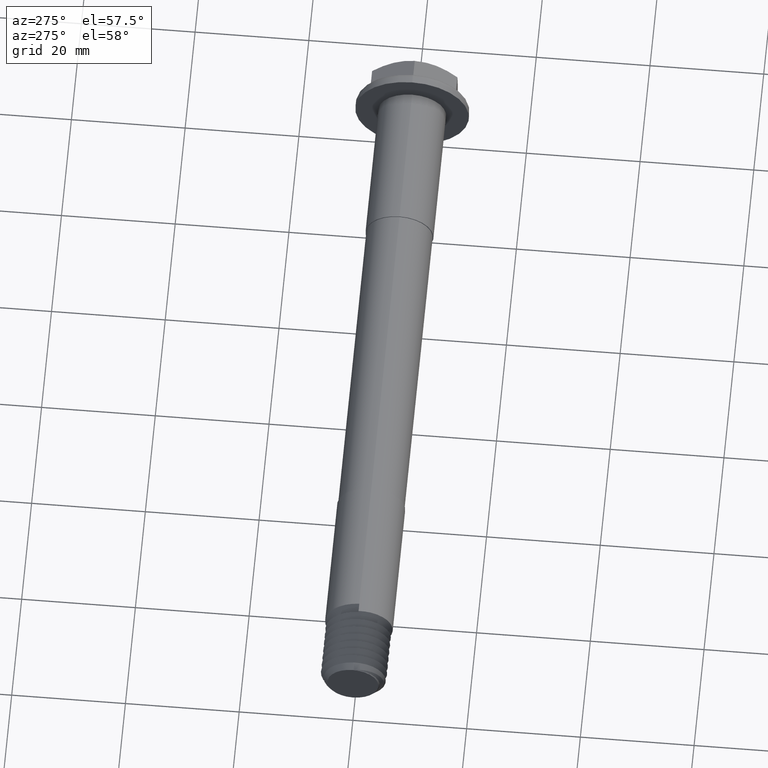
[diagram: clean part render]
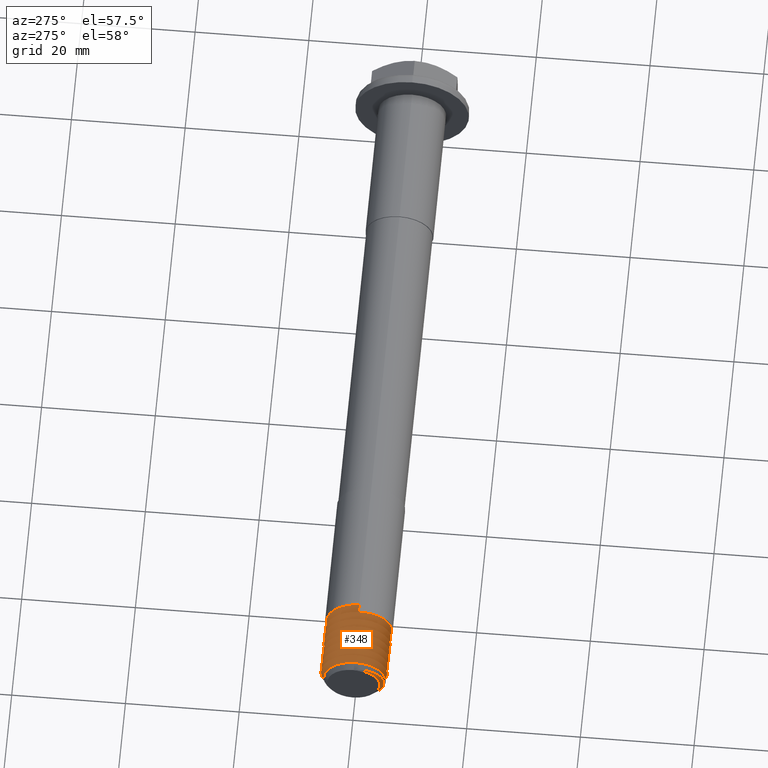
[diagram: same view with one face highlighted and labeled with its STEP entity id]
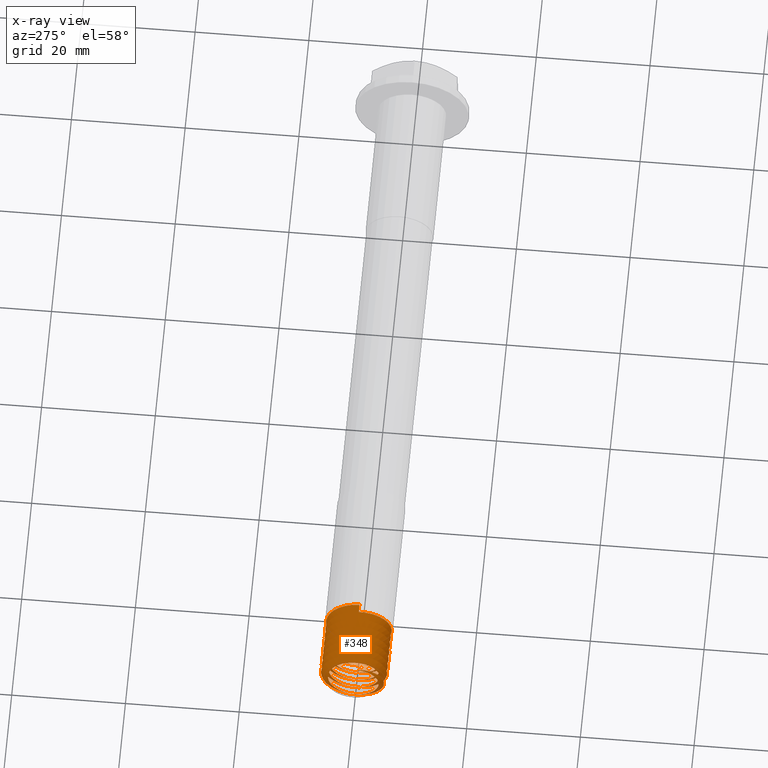
[diagram: x-ray of the same camera — body ghosted, the highlighted face saturated]
A machine part, auxiliary view. The second image highlights one B-rep face of the part: STEP entity #348.
The next image is the same camera in x-ray: the body ghosted, the highlighted face saturated — about 0% of this face is hidden behind the body in this view.
In plain terms, the highlighted face is a freeform B-spline surface patch.
Its self-contained STEP definition (entity closure, byte-faithful):
#6 = CARTESIAN_POINT ( 'NONE',  ( 5.343749999999992000, -2.402040232089651500, 5.799038105676650000 ) ) ;
#11 = CARTESIAN_POINT ( 'NONE',  ( 5.437499999999984000, -4.100539168883153200, 4.100539168883150500 ) ) ;
#18 = CARTESIAN_POINT ( 'NONE',  ( 5.531249999999973400, -5.799038105676653600, 2.402040232089647500 ) ) ;
#19 = VERTEX_POINT ( 'NONE', #344 ) ;
#20 = CARTESIAN_POINT ( 'NONE',  ( 9.281249999999980500, -4.499999999999996400, 1.863961030678924500 ) ) ;
#24 = CARTESIAN_POINT ( 'NONE',  ( 1.046329690633423200, -5.239581308157122300, -1.779413817325933700 ) ) ;
#31 = CARTESIAN_POINT ( 'NONE',  ( 5.624999999999991100, -5.799038105676653600, 0.0000000000000000000 ) ) ;
#32 = CARTESIAN_POINT ( 'NONE',  ( 9.374999999999994700, -4.499999999999997300, 0.0000000000000000000 ) ) ;
#38 = CARTESIAN_POINT ( 'NONE',  ( 11.24999999999998200, -2.983724378680108200E-013, 5.799038105676654500 ) ) ;
#41 = CARTESIAN_POINT ( 'NONE',  ( 5.718749999999986700, -5.799038105676653600, -2.402040232089655000 ) ) ;
#43 = CARTESIAN_POINT ( 'NONE',  ( 9.468749999999964500, -4.499999999999996400, -1.863961030678924500 ) ) ;
#47 = CARTESIAN_POINT ( 'NONE',  ( 1.072032607576030700, -5.179527989477072900, -2.019296628054692900 ) ) ;
#51 = CARTESIAN_POINT ( 'NONE',  ( 5.437499999999984000, -4.100539168883152300, 4.100539168883150500 ) ) ;
#59 = CARTESIAN_POINT ( 'NONE',  ( 5.343749999999992000, -2.402040232089639000, 5.799038105676658000 ) ) ;
#64 = CARTESIAN_POINT ( 'NONE',  ( 1.123386763838191800, -5.026582581461789300, -2.492305834221643800 ) ) ;
#70 = CARTESIAN_POINT ( 'NONE',  ( 5.812499999999998200, -4.100539168883152300, -4.100539168883150500 ) ) ;
#71 = CARTESIAN_POINT ( 'NONE',  ( 5.249999999999976900, 4.987329993433320400E-015, 5.799038105676654500 ) ) ;
#73 = CARTESIAN_POINT ( 'NONE',  ( 9.468749999999994700, 5.799038105676665100, 2.402040232089625200 ) ) ;
#77 = CARTESIAN_POINT ( 'NONE',  ( 5.906249999999999100, -2.402040232089652300, -5.799038105676657100 ) ) ;
#79 = CARTESIAN_POINT ( 'NONE',  ( 4.781249999999984900, -4.499999999999996400, 1.863961030678924500 ) ) ;
#82 = CARTESIAN_POINT ( 'NONE',  ( 1.149089429494840400, -4.933184628265707700, -2.725834871728844100 ) ) ;
#87 = CARTESIAN_POINT ( 'NONE',  ( 2.156249999999992000, -1.863961030678927200, -4.499999999999996400 ) ) ;
#89 = CARTESIAN_POINT ( 'NONE',  ( 5.624999999999991100, 4.499999999999997300, 0.0000000000000000000 ) ) ;
#91 = CARTESIAN_POINT ( 'NONE',  ( 1.223918757810282800, -4.611647090038093900, -3.395524028355231900 ) ) ;
#97 = CARTESIAN_POINT ( 'NONE',  ( 5.531249999999973400, 4.499999999999996400, -1.863961030678924500 ) ) ;
#99 = CARTESIAN_POINT ( 'NONE',  ( 9.562499999999973400, -3.181980515339462000, -3.181980515339459400 ) ) ;
#108 = CARTESIAN_POINT ( 'NONE',  ( 5.999999999999977800, -7.047314121155778800E-016, -5.799038105676654500 ) ) ;
#110 = CARTESIAN_POINT ( 'NONE',  ( 5.812499999999998200, 3.181980515339462900, 3.181980515339459400 ) ) ;
#116 = CARTESIAN_POINT ( 'NONE',  ( 6.093749999999981300, 2.402040232089651000, -5.799038105676650000 ) ) ;
#122 = ORIENTED_EDGE ( 'NONE', *, *, #808, .T. ) ;
#125 = CARTESIAN_POINT ( 'NONE',  ( 5.718749999999986700, 4.499999999999996400, 1.863961030678932000 ) ) ;
#126 = CARTESIAN_POINT ( 'NONE',  ( 0.4326743873587263200, -3.569580284291670400, 3.386702912076132500 ) ) ;
#128 = ORIENTED_EDGE ( 'NONE', *, *, #1508, .F. ) ;
#130 = CARTESIAN_POINT ( 'NONE',  ( 9.656249999999975100, -1.863961030678927200, -4.499999999999996400 ) ) ;
#137 = CARTESIAN_POINT ( 'NONE',  ( 9.749999999999980500, -5.421010862427522200E-016, -4.499999999999997300 ) ) ;
#148 = CARTESIAN_POINT ( 'NONE',  ( 9.843749999999987600, 1.863961030678926000, -4.499999999999996400 ) ) ;
#153 = CARTESIAN_POINT ( 'NONE',  ( 0.01830000000002662800, -0.3579392531337184900, 4.485741799420253500 ) ) ;
#165 = CARTESIAN_POINT ( 'NONE',  ( 0.7650249116127280100, -5.170898243913651300, 0.9225666405821700800 ) ) ;
#188 = CARTESIAN_POINT ( 'NONE',  ( 9.937499999999987600, 3.181980515339461600, -3.181980515339459400 ) ) ;
#189 = ORIENTED_EDGE ( 'NONE', *, *, #1765, .F. ) ;
#195 = CARTESIAN_POINT ( 'NONE',  ( 6.187499999999984900, 4.100539168883152300, -4.100539168883150500 ) ) ;
#196 = CARTESIAN_POINT ( 'NONE',  ( 10.03124999999997000, 4.499999999999996400, -1.863961030678924500 ) ) ;
#197 = VERTEX_POINT ( 'NONE', #2133 ) ;
#198 = CARTESIAN_POINT ( 'NONE',  ( 0.1041411675620151800, -2.010049151373329000, 4.353911879305594600 ) ) ;
#206 = CARTESIAN_POINT ( 'NONE',  ( 10.12499999999996800, 4.499999999999997300, 0.0000000000000000000 ) ) ;
#209 = CARTESIAN_POINT ( 'NONE',  ( 0.01830000000002662800, -0.3579392531337184900, 4.485741799420253500 ) ) ;
#222 = CARTESIAN_POINT ( 'NONE',  ( 6.281249999999992900, 5.799038105676652700, -2.402040232089655000 ) ) ;
#225 = CARTESIAN_POINT ( 'NONE',  ( 7.406249999999977800, 1.863961030678926500, 4.499999999999996400 ) ) ;
#227 = CARTESIAN_POINT ( 'NONE',  ( 0.9691193890800502400, -5.371312466250530300, -1.049804092435799000 ) ) ;
#230 = CARTESIAN_POINT ( 'NONE',  ( 10.21874999999998200, 4.499999999999996400, 1.863961030678932000 ) ) ;
#234 = ORIENTED_EDGE ( 'NONE', *, *, #1426, .F. ) ;
#239 = CARTESIAN_POINT ( 'NONE',  ( 0.2623661272780081800, -2.300617105437050600, 4.156126175846789100 ) ) ;
#243 = CARTESIAN_POINT ( 'NONE',  ( 6.374999999999992000, 5.799038105676653600, 0.0000000000000000000 ) ) ;
#244 = ORIENTED_EDGE ( 'NONE', *, *, #1729, .F. ) ;
#245 = CARTESIAN_POINT ( 'NONE',  ( 10.31249999999997500, 3.181980515339462900, 3.181980515339459400 ) ) ;
#247 = CARTESIAN_POINT ( 'NONE',  ( 4.312499999999996400, -4.100539168883152300, -4.100539168883150500 ) ) ;
#250 = CARTESIAN_POINT ( 'NONE',  ( 0.2321462831319418300, -2.067036056264310400, 4.243695679032546400 ) ) ;
#252 = CARTESIAN_POINT ( 'NONE',  ( 6.468749999999975100, 5.799038105676652700, 2.402040232089655000 ) ) ;
#253 = CARTESIAN_POINT ( 'NONE',  ( 10.40624999999996400, 1.863961030678929600, 4.499999999999996400 ) ) ;
#254 = CARTESIAN_POINT ( 'NONE',  ( 2.531249999999986700, -5.799038105676652700, 2.402040232089655000 ) ) ;
#258 = CARTESIAN_POINT ( 'NONE',  ( 1.270876681324562700, -4.340360787907405500, -3.808182726481073000 ) ) ;
#260 = CARTESIAN_POINT ( 'NONE',  ( 0.1875000000000071100, -3.181980515339461600, 3.181980515339459400 ) ) ;
#266 = CARTESIAN_POINT ( 'NONE',  ( 3.093749999999993800, 2.402040232089651000, -5.799038105676650000 ) ) ;
#272 = CARTESIAN_POINT ( 'NONE',  ( 0.2812499999999885100, -4.499999999999999100, 1.863961030678924500 ) ) ;
#276 = CARTESIAN_POINT ( 'NONE',  ( 6.562499999999999100, 4.100539168883152300, 4.100539168883150500 ) ) ;
#277 = CARTESIAN_POINT ( 'NONE',  ( 2.718749999999999100, -5.799038105676653600, -2.402040232089655000 ) ) ;
#295 = CARTESIAN_POINT ( 'NONE',  ( 6.656249999999988500, 2.402040232089656300, 5.799038105676650000 ) ) ;
#297 = CARTESIAN_POINT ( 'NONE',  ( 5.999999999999977800, 0.0000000000000000000, 4.499999999999997300 ) ) ;
#299 = CARTESIAN_POINT ( 'NONE',  ( 10.49999999999998200, 0.0000000000000000000, 4.499999999999997300 ) ) ;
#302 = CARTESIAN_POINT ( 'NONE',  ( 0.3749999999999864600, -4.499999999999998200, 0.0000000000000000000 ) ) ;
#305 = CARTESIAN_POINT ( 'NONE',  ( 0.09375000000000617600, -1.863961030678926700, 4.499999999999996400 ) ) ;
#308 = CARTESIAN_POINT ( 'NONE',  ( 5.906249999999999100, 1.863961030678929600, 4.499999999999996400 ) ) ;
#310 = CARTESIAN_POINT ( 'NONE',  ( 0.4687500000000008900, -4.499999999999999100, -1.863961030678924500 ) ) ;
#314 = CARTESIAN_POINT ( 'NONE',  ( 6.187499999999984900, -3.181980515339461100, 3.181980515339459400 ) ) ;
#315 = CARTESIAN_POINT ( 'NONE',  ( 10.59374999999997700, -1.863961030678926700, 4.499999999999996400 ) ) ;
#323 = CARTESIAN_POINT ( 'NONE',  ( 6.749999999999978700, 0.0000000000000000000, 5.799038105676654500 ) ) ;
#325 = CARTESIAN_POINT ( 'NONE',  ( 8.718749999999973400, 4.499999999999996400, 1.863961030678932000 ) ) ;
#329 = CARTESIAN_POINT ( 'NONE',  ( 0.5624999999999935600, -3.181980515339462500, -3.181980515339459400 ) ) ;
#333 = CARTESIAN_POINT ( 'NONE',  ( 6.374999999999992000, -4.499999999999997300, 0.0000000000000000000 ) ) ;
#334 = CARTESIAN_POINT ( 'NONE',  ( 0.4875485836884583800, -3.931764444438420100, 3.048810299359553200 ) ) ;
#335 = CARTESIAN_POINT ( 'NONE',  ( 10.68749999999998900, -3.181980515339461100, 3.181980515339459400 ) ) ;
#338 = CARTESIAN_POINT ( 'NONE',  ( 10.78124999999998900, -4.499999999999996400, 1.863961030678924500 ) ) ;
#340 = CARTESIAN_POINT ( 'NONE',  ( 0.6562500000000133200, -1.863961030678927800, -4.499999999999996400 ) ) ;
#344 = CARTESIAN_POINT ( 'NONE',  ( 0.01830000000002662800, -0.3579392531337184900, 4.485741799420253500 ) ) ;
#346 = CARTESIAN_POINT ( 'NONE',  ( 10.87499999999996800, -4.499999999999997300, 0.0000000000000000000 ) ) ;
#348 = ADVANCED_FACE ( 'NONE', ( #601 ), #505, .T. ) ;
#349 = CARTESIAN_POINT ( 'NONE',  ( 0.7500000000000006700, -5.421010862427522200E-016, -4.499999999999997300 ) ) ;
#350 = EDGE_LOOP ( 'NONE', ( #122, #128, #234, #244, #189, #657 ) ) ;
#355 = VERTEX_POINT ( 'NONE', #943 ) ;
#366 = CARTESIAN_POINT ( 'NONE',  ( 9.281249999999980500, 5.799038105676650000, -2.402040232089663000 ) ) ;
#376 = CARTESIAN_POINT ( 'NONE',  ( 9.187499999999987600, 4.100539168883148700, -4.100539168883150500 ) ) ;
#397 = CARTESIAN_POINT ( 'NONE',  ( 2.062499999999994700, 4.100539168883153200, 4.100539168883150500 ) ) ;
#398 = CARTESIAN_POINT ( 'NONE',  ( 0.8437499999999955600, 1.863961030678925800, -4.499999999999996400 ) ) ;
#403 = CARTESIAN_POINT ( 'NONE',  ( 8.062499999999971600, 4.100539168883161200, 4.100539168883143400 ) ) ;
#407 = CARTESIAN_POINT ( 'NONE',  ( 0.9375000000000077700, 3.181980515339462000, -3.181980515339459400 ) ) ;
#414 = CARTESIAN_POINT ( 'NONE',  ( 1.031250000000007800, 4.499999999999997300, -1.863961030678924500 ) ) ;
#417 = CARTESIAN_POINT ( 'NONE',  ( 1.409059592567420700, -2.330053518673981900, -5.799038105676657100 ) ) ;
#420 = CARTESIAN_POINT ( 'NONE',  ( 9.093749999999968000, 2.402040232089655900, -5.799038105676650000 ) ) ;
#424 = CARTESIAN_POINT ( 'NONE',  ( 1.124999999999987100, 4.499999999999998200, 0.0000000000000000000 ) ) ;
#425 = CARTESIAN_POINT ( 'NONE',  ( 1.218749999999990200, 4.499999999999997300, 1.863961030678932300 ) ) ;
#427 = CARTESIAN_POINT ( 'NONE',  ( 1.874999999999987800, 5.799038105676653600, 0.0000000000000000000 ) ) ;
#432 = CARTESIAN_POINT ( 'NONE',  ( 0.1875000000000071100, -3.181980515339461100, 3.181980515339459400 ) ) ;
#435 = CARTESIAN_POINT ( 'NONE',  ( 1.312499999999994200, 3.181980515339463400, 3.181980515339459400 ) ) ;
#441 = CARTESIAN_POINT ( 'NONE',  ( 10.96874999999997300, -4.499999999999996400, -1.863961030678924500 ) ) ;
#442 = CARTESIAN_POINT ( 'NONE',  ( 1.406250000000002400, 1.863961030678930300, 4.499999999999996400 ) ) ;
#444 = CARTESIAN_POINT ( 'NONE',  ( 1.500000000000001300, 1.084202172485504400E-015, 4.499999999999997300 ) ) ;
#450 = VERTEX_POINT ( 'NONE', #1660 ) ;
#452 = CARTESIAN_POINT ( 'NONE',  ( 1.593749999999984900, -1.863961030678927800, 4.499999999999996400 ) ) ;
#453 = CARTESIAN_POINT ( 'NONE',  ( 4.406249999999990200, -2.402040232089652300, -5.799038105676657100 ) ) ;
#458 = CARTESIAN_POINT ( 'NONE',  ( 1.687500000000008400, -3.181980515339461100, 3.181980515339459400 ) ) ;
#462 = CARTESIAN_POINT ( 'NONE',  ( 6.281249999999992900, 5.799038105676650000, -2.402040232089655000 ) ) ;
#463 = CARTESIAN_POINT ( 'NONE',  ( 6.843749999999970700, -2.402040232089651500, 5.799038105676650000 ) ) ;
#464 = CARTESIAN_POINT ( 'NONE',  ( 11.06249999999997500, -3.181980515339462000, -3.181980515339459400 ) ) ;
#467 = CARTESIAN_POINT ( 'NONE',  ( 1.781249999999997300, -4.499999999999997300, 1.863961030678932300 ) ) ;
#474 = CARTESIAN_POINT ( 'NONE',  ( 1.874999999999987800, -4.499999999999998200, 0.0000000000000000000 ) ) ;
#476 = CARTESIAN_POINT ( 'NONE',  ( 0.1402608971038545600, -1.347599001981799800, 4.448761247445559300 ) ) ;
#480 = CARTESIAN_POINT ( 'NONE',  ( 6.937499999999985800, -4.100539168883153200, 4.100539168883150500 ) ) ;
#481 = CARTESIAN_POINT ( 'NONE',  ( 1.968750000000009500, -4.499999999999999100, -1.863961030678932300 ) ) ;
#485 = CARTESIAN_POINT ( 'NONE',  ( 2.062499999999994700, -3.181980515339466000, -3.181980515339459400 ) ) ;
#489 = CARTESIAN_POINT ( 'NONE',  ( 8.343749999999980500, -2.402040232089635500, 5.799038105676658000 ) ) ;
#490 = CARTESIAN_POINT ( 'NONE',  ( 11.15624999999998600, -1.863961030678927200, -4.499999999999996400 ) ) ;
#491 = CARTESIAN_POINT ( 'NONE',  ( 3.187499999999982200, 4.100539168883153200, -4.100539168883150500 ) ) ;
#493 = CARTESIAN_POINT ( 'NONE',  ( 2.156249999999992000, -1.863961030678930700, -4.499999999999996400 ) ) ;
#498 = CARTESIAN_POINT ( 'NONE',  ( 2.250000000000001800, -1.626303258728256700E-015, -4.499999999999997300 ) ) ;
#502 = CARTESIAN_POINT ( 'NONE',  ( 6.187499999999984900, 4.100539168883151400, -4.100539168883150500 ) ) ;
#504 = CARTESIAN_POINT ( 'NONE',  ( 5.156249999999979600, 2.402040232089648800, 5.799038105676658000 ) ) ;
#505 =( BOUNDED_SURFACE ( )  B_SPLINE_SURFACE ( 1, 2, ( 
 ( #1171, #708, #1178, #1192, #1200, #1223, #1230, #1333, #1342, #1366, #1372, #1474, #1495, #1505, #1515, #1524, #1672, #1682, #1690, #1701, #1852, #1863, #1876, #1884, #1893, #2022, #2031, #2044, #2064, #2073, #2085, #2205, #2217, #2225, #2237, #2249, #2262, #2271, #247, #453, #665, #843, #1024, #1209, #1349, #1480, #1834, #1844, #903, #6, #11, #18, #31, #41, #70, #77, #108, #116, #195, #222, #243, #252, #276, #295, #323, #463, #480, #517, #530, #538, #571, #655, #674, #685, #690, #703, #714, #725, #743, #805, #823, #841, #850, #861, #870, #878, #891, #897, #986, #999, #1009, #1056, #1085, #1105, #1189, #1198, #1228, #1233, #1240, #1248, #1260, #1340, #1353, #1376, #1383, #1390, #1400, #1465, #1472, #1491, #1512, #1539, #1547, #1556, #1572, #1658, #1670, #1680, #1687, #1698, #1708, #1726, #1734, #1759, #1824, #1870, #1882, #1889, #1901, #1909, #1923, #1935, #2014, #2019, #2041, #2054, #2068, #2089, #2107, #2118, #2124, #2213, #2258, #2276, #2286 ),
 ( #2311, #305, #432, #1565, #736, #1206, #809, #1944, #1066, #1095, #1043, #1502, #1532, #1649, #1748, #1739, #2079, #2203, #1370, #2233, #2245, #2268, #2301, #87, #1742, #1285, #1777, #1241, #1911, #1108, #1770, #1124, #1920, #2127, #1115, #1234, #1270, #1549, #2120, #2097, #918, #1750, #1762, #2109, #580, #1575, #1069, #926, #727, #1402, #2134, #79, #2304, #2315, #1583, #1926, #2294, #2322, #2288, #97, #89, #125, #110, #308, #297, #565, #314, #532, #333, #552, #540, #721, #591, #746, #739, #763, #754, #892, #887, #1249, #1079, #905, #1947, #1391, #2090, #1728, #1097, #1736, #1256, #1395, #899, #2328, #1262, #325, #2278, #1541, #1558, #1567, #2149, #20, #32, #43, #99, #130, #137, #148, #188, #196, #206, #230, #245, #253, #299, #315, #335, #338, #346, #441, #464, #490, #543, #566, #573, #582, #584, #592, #597, #608, #649, #664, #722, #729, #732, #747, #757, #764, #771, #780, #810, #842, #851, #893, #900, #907, #910 ) ),
 .UNSPECIFIED., .F., .F., .F. ) 
 B_SPLINE_SURFACE_WITH_KNOTS ( ( 2, 2 ),
 ( 3, 2, 2, 2, 2, 2, 2, 2, 2, 2, 2, 2, 2, 2, 2, 2, 2, 2, 2, 2, 2, 2, 2, 2, 2, 2, 2, 2, 2, 2, 2, 2, 2, 2, 2, 2, 2, 2, 2, 2, 2, 2, 2, 2, 2, 2, 2, 2, 2, 2, 2, 2, 2, 2, 2, 2, 2, 2, 2, 2, 2, 2, 2, 2, 2, 2, 2, 2, 2, 2, 2, 2, 3 ),
 ( 0.0000000000000000000, 1.000000000000000000 ),
 ( 0.0000000000000000000, 0.01388888888888888800, 0.02777777777777777600, 0.04166666666666666400, 0.05555555555555555200, 0.06944444444444444800, 0.08333333333333332900, 0.09722222222222222400, 0.1111111111111111000, 0.1250000000000000000, 0.1388888888888889000, 0.1527777777777777900, 0.1666666666666666600, 0.1805555555555555500, 0.1944444444444444500, 0.2083333333333333400, 0.2222222222222222100, 0.2361111111111111000, 0.2500000000000000000, 0.2638888888888889000, 0.2777777777777777900, 0.2916666666666666900, 0.3055555555555555800, 0.3194444444444444200, 0.3333333333333333100, 0.3472222222222222100, 0.3611111111111111000, 0.3750000000000000000, 0.3888888888888889000, 0.4027777777777777900, 0.4166666666666666900, 0.4305555555555555800, 0.4444444444444444200, 0.4583333333333333100, 0.4722222222222222100, 0.4861111111111111000, 0.5000000000000000000, 0.5138888888888888400, 0.5277777777777777900, 0.5416666666666666300, 0.5555555555555555800, 0.5694444444444444200, 0.5833333333333333700, 0.5972222222222222100, 0.6111111111111111600, 0.6250000000000000000, 0.6388888888888888400, 0.6527777777777777900, 0.6666666666666666300, 0.6805555555555555800, 0.6944444444444444200, 0.7083333333333333700, 0.7222222222222222100, 0.7361111111111111600, 0.7500000000000000000, 0.7638888888888888400, 0.7777777777777777900, 0.7916666666666666300, 0.8055555555555555800, 0.8194444444444444200, 0.8333333333333333700, 0.8472222222222222100, 0.8611111111111111600, 0.8750000000000000000, 0.8888888888888888400, 0.9027777777777777900, 0.9166666666666666300, 0.9305555555555555800, 0.9444444444444444200, 0.9583333333333333700, 0.9722222222222222100, 0.9861111111111111600, 1.000000000000000000 ),
 .UNSPECIFIED. ) 
 GEOMETRIC_REPRESENTATION_ITEM ( )  RATIONAL_B_SPLINE_SURFACE ( (
 ( 1.000000000000000000, 0.9238795325112867400, 1.000000000000000000, 0.9238795325112867400, 1.000000000000000000, 0.9238795325112867400, 1.000000000000000000, 0.9238795325112867400, 1.000000000000000000, 0.9238795325112867400, 1.000000000000000000, 0.9238795325112867400, 1.000000000000000000, 0.9238795325112867400, 1.000000000000000000, 0.9238795325112867400, 1.000000000000000000, 0.9238795325112867400, 1.000000000000000000, 0.9238795325112867400, 1.000000000000000000, 0.9238795325112867400, 1.000000000000000000, 0.9238795325112867400, 1.000000000000000000, 0.9238795325112867400, 1.000000000000000000, 0.9238795325112867400, 1.000000000000000000, 0.9238795325112867400, 1.000000000000000000, 0.9238795325112867400, 1.000000000000000000, 0.9238795325112867400, 1.000000000000000000, 0.9238795325112867400, 1.000000000000000000, 0.9238795325112867400, 1.000000000000000000, 0.9238795325112867400, 1.000000000000000000, 0.9238795325112867400, 1.000000000000000000, 0.9238795325112867400, 1.000000000000000000, 0.9238795325112867400, 1.000000000000000000, 0.9238795325112867400, 1.000000000000000000, 0.9238795325112867400, 1.000000000000000000, 0.9238795325112867400, 1.000000000000000000, 0.9238795325112867400, 1.000000000000000000, 0.9238795325112867400, 1.000000000000000000, 0.9238795325112867400, 1.000000000000000000, 0.9238795325112867400, 1.000000000000000000, 0.9238795325112867400, 1.000000000000000000, 0.9238795325112867400, 1.000000000000000000, 0.9238795325112867400, 1.000000000000000000, 0.9238795325112867400, 1.000000000000000000, 0.9238795325112867400, 1.000000000000000000, 0.9238795325112867400, 1.000000000000000000, 0.9238795325112867400, 1.000000000000000000, 0.9238795325112867400, 1.000000000000000000, 0.9238795325112867400, 1.000000000000000000, 0.9238795325112867400, 1.000000000000000000, 0.9238795325112867400, 1.000000000000000000, 0.9238795325112867400, 1.000000000000000000, 0.9238795325112867400, 1.000000000000000000, 0.9238795325112867400, 1.000000000000000000, 0.9238795325112867400, 1.000000000000000000, 0.9238795325112867400, 1.000000000000000000, 0.9238795325112867400, 1.000000000000000000, 0.9238795325112867400, 1.000000000000000000, 0.9238795325112867400, 1.000000000000000000, 0.9238795325112867400, 1.000000000000000000, 0.9238795325112867400, 1.000000000000000000, 0.9238795325112867400, 1.000000000000000000, 0.9238795325112867400, 1.000000000000000000, 0.9238795325112867400, 1.000000000000000000, 0.9238795325112867400, 1.000000000000000000, 0.9238795325112867400, 1.000000000000000000, 0.9238795325112867400, 1.000000000000000000, 0.9238795325112867400, 1.000000000000000000, 0.9238795325112867400, 1.000000000000000000, 0.9238795325112867400, 1.000000000000000000, 0.9238795325112867400, 1.000000000000000000, 0.9238795325112867400, 1.000000000000000000, 0.9238795325112867400, 1.000000000000000000, 0.9238795325112867400, 1.000000000000000000, 0.9238795325112867400, 1.000000000000000000, 0.9238795325112867400, 1.000000000000000000, 0.9238795325112867400, 1.000000000000000000, 0.9238795325112867400, 1.000000000000000000, 0.9238795325112867400, 1.000000000000000000, 0.9238795325112867400, 1.000000000000000000, 0.9238795325112867400, 1.000000000000000000, 0.9238795325112867400, 1.000000000000000000),
 ( 1.000000000000000000, 0.9238795325112867400, 1.000000000000000000, 0.9238795325112867400, 1.000000000000000000, 0.9238795325112867400, 1.000000000000000000, 0.9238795325112867400, 1.000000000000000000, 0.9238795325112867400, 1.000000000000000000, 0.9238795325112867400, 1.000000000000000000, 0.9238795325112867400, 1.000000000000000000, 0.9238795325112867400, 1.000000000000000000, 0.9238795325112867400, 1.000000000000000000, 0.9238795325112867400, 1.000000000000000000, 0.9238795325112867400, 1.000000000000000000, 0.9238795325112867400, 1.000000000000000000, 0.9238795325112867400, 1.000000000000000000, 0.9238795325112867400, 1.000000000000000000, 0.9238795325112867400, 1.000000000000000000, 0.9238795325112867400, 1.000000000000000000, 0.9238795325112867400, 1.000000000000000000, 0.9238795325112867400, 1.000000000000000000, 0.9238795325112867400, 1.000000000000000000, 0.9238795325112867400, 1.000000000000000000, 0.9238795325112867400, 1.000000000000000000, 0.9238795325112867400, 1.000000000000000000, 0.9238795325112867400, 1.000000000000000000, 0.9238795325112867400, 1.000000000000000000, 0.9238795325112867400, 1.000000000000000000, 0.9238795325112867400, 1.000000000000000000, 0.9238795325112867400, 1.000000000000000000, 0.9238795325112867400, 1.000000000000000000, 0.9238795325112867400, 1.000000000000000000, 0.9238795325112867400, 1.000000000000000000, 0.9238795325112867400, 1.000000000000000000, 0.9238795325112867400, 1.000000000000000000, 0.9238795325112867400, 1.000000000000000000, 0.9238795325112867400, 1.000000000000000000, 0.9238795325112867400, 1.000000000000000000, 0.9238795325112867400, 1.000000000000000000, 0.9238795325112867400, 1.000000000000000000, 0.9238795325112867400, 1.000000000000000000, 0.9238795325112867400, 1.000000000000000000, 0.9238795325112867400, 1.000000000000000000, 0.9238795325112867400, 1.000000000000000000, 0.9238795325112867400, 1.000000000000000000, 0.9238795325112867400, 1.000000000000000000, 0.9238795325112867400, 1.000000000000000000, 0.9238795325112867400, 1.000000000000000000, 0.9238795325112867400, 1.000000000000000000, 0.9238795325112867400, 1.000000000000000000, 0.9238795325112867400, 1.000000000000000000, 0.9238795325112867400, 1.000000000000000000, 0.9238795325112867400, 1.000000000000000000, 0.9238795325112867400, 1.000000000000000000, 0.9238795325112867400, 1.000000000000000000, 0.9238795325112867400, 1.000000000000000000, 0.9238795325112867400, 1.000000000000000000, 0.9238795325112867400, 1.000000000000000000, 0.9238795325112867400, 1.000000000000000000, 0.9238795325112867400, 1.000000000000000000, 0.9238795325112867400, 1.000000000000000000, 0.9238795325112867400, 1.000000000000000000, 0.9238795325112867400, 1.000000000000000000, 0.9238795325112867400, 1.000000000000000000, 0.9238795325112867400, 1.000000000000000000, 0.9238795325112867400, 1.000000000000000000, 0.9238795325112867400, 1.000000000000000000, 0.9238795325112867400, 1.000000000000000000, 0.9238795325112867400, 1.000000000000000000, 0.9238795325112867400, 1.000000000000000000, 0.9238795325112867400, 1.000000000000000000, 0.9238795325112867400, 1.000000000000000000, 0.9238795325112867400, 1.000000000000000000, 0.9238795325112867400, 1.000000000000000000, 0.9238795325112867400, 1.000000000000000000) ) ) 
 REPRESENTATION_ITEM ( '' )  SURFACE ( )  );
#508 =( BOUNDED_CURVE ( )  B_SPLINE_CURVE ( 2, ( #2015, #1840, #1313, #1436, #1324, #1308, #1164, #1151, #1145, #987, #968, #961, #824, #806, #803, #792, #663 ),
 .UNSPECIFIED., .F., .T. ) 
 B_SPLINE_CURVE_WITH_KNOTS ( ( 3, 2, 2, 2, 2, 2, 2, 2, 3 ),
 ( 0.7777777777777787900, 0.7916666666666677400, 0.8055555555555568000, 0.8194444444444457500, 0.8333333333333348100, 0.8472222222222237600, 0.8611111111111128300, 0.8750000000000017800, 0.8888888888888907300 ),
 .UNSPECIFIED. ) 
 CURVE ( )  GEOMETRIC_REPRESENTATION_ITEM ( )  RATIONAL_B_SPLINE_CURVE ( ( 0.9999999999999945600, 0.9238795325112921800, 1.000000000000000000, 0.9238795325112867400, 1.000000000000000000, 0.9238795325112867400, 1.000000000000000000, 0.9238795325112867400, 1.000000000000000000, 0.9238795325112867400, 1.000000000000000000, 0.9238795325112867400, 1.000000000000000000, 0.9238795325112867400, 1.000000000000000000, 0.9238795325112764100, 1.000000000000010400 ) ) 
 REPRESENTATION_ITEM ( '' )  );
#515 = CARTESIAN_POINT ( 'NONE',  ( 6.374999999999992000, 5.799038105676653600, -1.387778780781445700E-014 ) ) ;
#517 = CARTESIAN_POINT ( 'NONE',  ( 7.031249999999983100, -5.799038105676653600, 2.402040232089647500 ) ) ;
#519 = CARTESIAN_POINT ( 'NONE',  ( 5.062499999999997300, 4.100539168883159400, 4.100539168883150500 ) ) ;
#525 = CARTESIAN_POINT ( 'NONE',  ( 2.343750000000004400, 1.863961030678927200, -4.499999999999996400 ) ) ;
#530 = CARTESIAN_POINT ( 'NONE',  ( 7.124999999999992900, -5.799038105676653600, 0.0000000000000000000 ) ) ;
#532 = CARTESIAN_POINT ( 'NONE',  ( 6.281249999999992900, -4.499999999999996400, 1.863961030678924500 ) ) ;
#535 = CARTESIAN_POINT ( 'NONE',  ( 2.437499999999981300, 3.181980515339464200, -3.181980515339459400 ) ) ;
#538 = CARTESIAN_POINT ( 'NONE',  ( 7.218749999999994700, -5.799038105676653600, -2.402040232089655000 ) ) ;
#540 = CARTESIAN_POINT ( 'NONE',  ( 6.562499999999999100, -3.181980515339462000, -3.181980515339459400 ) ) ;
#543 = CARTESIAN_POINT ( 'NONE',  ( 11.24999999999998200, -5.421010862427522200E-016, -4.499999999999997300 ) ) ;
#546 = CARTESIAN_POINT ( 'NONE',  ( 2.531249999999986700, 4.499999999999996400, -1.863961030678932300 ) ) ;
#552 = CARTESIAN_POINT ( 'NONE',  ( 6.468749999999975100, -4.499999999999996400, -1.863961030678924500 ) ) ;
#557 = CARTESIAN_POINT ( 'NONE',  ( 2.624999999999988500, 4.499999999999998200, 0.0000000000000000000 ) ) ;
#565 = CARTESIAN_POINT ( 'NONE',  ( 6.093749999999981300, -1.863961030678926700, 4.499999999999996400 ) ) ;
#566 = CARTESIAN_POINT ( 'NONE',  ( 11.34374999999996600, 1.863961030678926000, -4.499999999999996400 ) ) ;
#571 = CARTESIAN_POINT ( 'NONE',  ( 7.312499999999971600, -4.100539168883152300, -4.100539168883150500 ) ) ;
#573 = CARTESIAN_POINT ( 'NONE',  ( 11.43749999999996100, 3.181980515339461600, -3.181980515339459400 ) ) ;
#576 = CARTESIAN_POINT ( 'NONE',  ( 10.31249999999997500, 3.181980515339459400, 3.181980515339466500 ) ) ;
#580 = CARTESIAN_POINT ( 'NONE',  ( 4.124999999999989300, 4.499999999999997300, 0.0000000000000000000 ) ) ;
#581 = CARTESIAN_POINT ( 'NONE',  ( 0.3210804689741253400, -2.747675812022731400, 3.946775684097893600 ) ) ;
#582 = CARTESIAN_POINT ( 'NONE',  ( 11.53124999999997900, 4.499999999999996400, -1.863961030678924500 ) ) ;
#584 = CARTESIAN_POINT ( 'NONE',  ( 11.62499999999996800, 4.499999999999997300, 0.0000000000000000000 ) ) ;
#586 = CARTESIAN_POINT ( 'NONE',  ( 10.21874999999998200, 4.500000000000006200, 1.863961030678909600 ) ) ;
#591 = CARTESIAN_POINT ( 'NONE',  ( 6.749999999999978700, -5.421010862427522200E-016, -4.499999999999997300 ) ) ;
#592 = CARTESIAN_POINT ( 'NONE',  ( 11.71874999999996300, 4.499999999999996400, 1.863961030678932000 ) ) ;
#593 = CARTESIAN_POINT ( 'NONE',  ( 2.718749999999999100, 4.499999999999999100, 1.863961030678924500 ) ) ;
#597 = CARTESIAN_POINT ( 'NONE',  ( 11.81249999999997500, 3.181980515339462900, 3.181980515339459400 ) ) ;
#601 = FACE_OUTER_BOUND ( 'NONE', #350, .T. ) ;
#608 = CARTESIAN_POINT ( 'NONE',  ( 11.90624999999997300, 1.863961030678929600, 4.499999999999996400 ) ) ;
#636 = CARTESIAN_POINT ( 'NONE',  ( 2.812499999999995600, 3.181980515339466900, 3.181980515339459400 ) ) ;
#639 =( BOUNDED_CURVE ( )  B_SPLINE_CURVE ( 2, ( #1779, #1753, #1410, #1406, #1292, #1264, #1257, #1130, #1126, #1111, #1089, #946, #935, #922, #914, #772, #750 ),
 .UNSPECIFIED., .F., .T. ) 
 B_SPLINE_CURVE_WITH_KNOTS ( ( 3, 2, 2, 2, 2, 2, 2, 2, 3 ),
 ( 0.7777777777777777900, 0.7916666666666667400, 0.8055555555555558000, 0.8194444444444447500, 0.8333333333333339300, 0.8472222222222228800, 0.8611111111111119400, 0.8750000000000008900, 0.8888888888888898400 ),
 .UNSPECIFIED. ) 
 CURVE ( )  GEOMETRIC_REPRESENTATION_ITEM ( )  RATIONAL_B_SPLINE_CURVE ( ( 1.000000000000000000, 0.9238795325112867400, 1.000000000000000000, 0.9238795325112867400, 1.000000000000000000, 0.9238795325112867400, 1.000000000000000000, 0.9238795325112867400, 1.000000000000000000, 0.9238795325112867400, 1.000000000000000000, 0.9238795325112867400, 1.000000000000000000, 0.9238795325112867400, 1.000000000000000000, 0.9238795325112813000, 1.000000000000005600 ) ) 
 REPRESENTATION_ITEM ( '' )  );
#644 = CARTESIAN_POINT ( 'NONE',  ( 3.187499999999982200, -3.181980515339462900, 3.181980515339459400 ) ) ;
#649 = CARTESIAN_POINT ( 'NONE',  ( 11.99999999999998200, 0.0000000000000000000, 4.499999999999997300 ) ) ;
#651 = CARTESIAN_POINT ( 'NONE',  ( 3.281250000000005800, -4.499999999999996400, 1.863961030678932300 ) ) ;
#653 = CARTESIAN_POINT ( 'NONE',  ( 3.374999999999989300, -4.499999999999998200, 0.0000000000000000000 ) ) ;
#655 = CARTESIAN_POINT ( 'NONE',  ( 7.406249999999976900, -2.402040232089652300, -5.799038105676657100 ) ) ;
#657 = ORIENTED_EDGE ( 'NONE', *, *, #1596, .F. ) ;
#663 = CARTESIAN_POINT ( 'NONE',  ( 12.75000000000001100, -6.063400649625183500E-013, 5.799038105676654500 ) ) ;
#664 = CARTESIAN_POINT ( 'NONE',  ( 12.09374999999998600, -1.863961030678926700, 4.499999999999996400 ) ) ;
#665 = CARTESIAN_POINT ( 'NONE',  ( 4.499999999999976000, -7.047314121155778800E-016, -5.799038105676654500 ) ) ;
#672 = CARTESIAN_POINT ( 'NONE',  ( 8.999999999999980500, -2.911082833123579400E-014, -5.799038105676654500 ) ) ;
#674 = CARTESIAN_POINT ( 'NONE',  ( 7.499999999999978700, -7.047314121155778800E-016, -5.799038105676654500 ) ) ;
#678 = CARTESIAN_POINT ( 'NONE',  ( 6.468749999999976000, 5.799038105676655300, 2.402040232089647500 ) ) ;
#685 = CARTESIAN_POINT ( 'NONE',  ( 7.593749999999990200, 2.402040232089651000, -5.799038105676650000 ) ) ;
#690 = CARTESIAN_POINT ( 'NONE',  ( 7.687499999999985800, 4.100539168883152300, -4.100539168883150500 ) ) ;
#692 = CARTESIAN_POINT ( 'NONE',  ( 4.968749999999997300, 5.799038105676655300, 2.402040232089647500 ) ) ;
#703 = CARTESIAN_POINT ( 'NONE',  ( 7.781249999999972500, 5.799038105676652700, -2.402040232089655000 ) ) ;
#704 = CARTESIAN_POINT ( 'NONE',  ( 4.874999999999990200, 5.799038105676653600, -1.387778780781445700E-014 ) ) ;
#708 = CARTESIAN_POINT ( 'NONE',  ( 0.8437499999999955600, -2.402040232089651500, 5.799038105676650000 ) ) ;
#714 = CARTESIAN_POINT ( 'NONE',  ( 7.874999999999992900, 5.799038105676653600, 0.0000000000000000000 ) ) ;
#715 =( BOUNDED_CURVE ( )  B_SPLINE_CURVE ( 2, ( #1415, #417, #2207, #2195, #1463, #1005, #427, #1258, #397, #2155, #2265, #2069, #1522, #254, #1219, #277, #1057, #1045, #1034, #266, #491, #2269, #2259, #2247, #2082, #1890, #1883, #1874, #1709, #1699, #1533, #1513, #1377, #1371, #1229, #1207, #872, #863, #704, #692, #519, #504, #71, #59, #51, #2181, #2198, #2006, #1772, #2243, #2211, #2289, #502, #462, #515, #678, #2144, #1278, #2112, #2039, #978, #2345, #2154, #2296, #2192, #2084, #2052, #1815, #1918, #1929, #1733, #1710, #403, #1696, #1639, #489, #1501, #1070, #1318, #953, #869, #860, #672, #420, #376, #366, #1531, #73, #2363, #2359, #2352 ),
 .UNSPECIFIED., .F., .T. ) 
 B_SPLINE_CURVE_WITH_KNOTS ( ( 3, 2, 2, 2, 2, 2, 2, 2, 2, 2, 2, 2, 2, 2, 2, 2, 2, 2, 2, 2, 2, 2, 2, 2, 2, 2, 2, 2, 2, 2, 2, 2, 2, 2, 2, 2, 2, 2, 2, 2, 2, 2, 2, 2, 2, 3 ),
 ( 0.04205209779459721100, 0.05555555555555555200, 0.06944444444444444800, 0.08333333333333332900, 0.09722222222222222400, 0.1111111111111111000, 0.1250000000000000000, 0.1388888888888889000, 0.1527777777777777900, 0.1666666666666666900, 0.1805555555555555500, 0.1944444444444444500, 0.2083333333333333400, 0.2222222222222222100, 0.2361111111111111000, 0.2500000000000000600, 0.2638888888888889500, 0.2777777777777778500, 0.2916666666666666900, 0.3055555555555555800, 0.3194444444444444200, 0.3333333333333333100, 0.3472222222222222100, 0.3611111111111111000, 0.3750000000000000000, 0.3888888888888889000, 0.4027777777777777900, 0.4166666666666666900, 0.4305555555555555800, 0.4444444444444444200, 0.4583333333333333100, 0.4722222222222222700, 0.4861111111111111000, 0.5000000000000000000, 0.5138888888888887300, 0.5277777777777776800, 0.5416666666666666300, 0.5555555555555555800, 0.5694444444444444200, 0.5833333333333333700, 0.5972222222222222100, 0.6111111111111111600, 0.6250000000000000000, 0.6388888888888888400, 0.6527777777777777900, 0.6666666666666666300 ),
 .UNSPECIFIED. ) 
 CURVE ( )  GEOMETRIC_REPRESENTATION_ITEM ( )  RATIONAL_B_SPLINE_CURVE ( ( 0.9958923993721753300, 0.9259919547415665900, 1.000000000000000000, 0.9238795325112867400, 1.000000000000000000, 0.9238795325112867400, 1.000000000000000000, 0.9238795325112867400, 1.000000000000000000, 0.9238795325112867400, 1.000000000000000000, 0.9238795325112867400, 1.000000000000000000, 0.9238795325112867400, 1.000000000000000000, 0.9238795325112867400, 1.000000000000000000, 0.9238795325112867400, 1.000000000000000000, 0.9238795325112867400, 1.000000000000000000, 0.9238795325112867400, 1.000000000000000000, 0.9238795325112867400, 1.000000000000000000, 0.9238795325112867400, 1.000000000000000000, 0.9238795325112867400, 1.000000000000000000, 0.9238795325112867400, 1.000000000000000000, 0.9238795325112867400, 1.000000000000000000, 0.9238795325112867400, 1.000000000000000000, 0.9238795325112867400, 1.000000000000000000, 0.9238795325112867400, 1.000000000000000000, 0.9238795325112867400, 1.000000000000000000, 0.9238795325112867400, 1.000000000000000000, 0.9238795325112867400, 1.000000000000000000, 0.9238795325112867400, 1.000000000000000000, 0.9238795325112867400, 1.000000000000000000, 0.9238795325112867400, 1.000000000000000000, 0.9238795325112867400, 1.000000000000000000, 0.9238795325112867400, 1.000000000000000000, 0.9238795325112867400, 1.000000000000000000, 0.9238795325112867400, 1.000000000000000000, 0.9238795325112867400, 1.000000000000000000, 0.9238795325112867400, 1.000000000000000000, 0.9238795325112867400, 1.000000000000000000, 0.9238795325112867400, 1.000000000000000000, 0.9238795325112867400, 1.000000000000000000, 0.9238795325112867400, 1.000000000000000000, 0.9238795325112867400, 1.000000000000000000, 0.9238795325112867400, 1.000000000000000000, 0.9238795325112867400, 1.000000000000000000, 0.9238795325112867400, 1.000000000000000000, 0.9238795325112867400, 1.000000000000000000, 0.9238795325112867400, 1.000000000000000000, 0.9238795325112867400, 1.000000000000000000, 0.9238795325112867400, 1.000000000000000000, 0.9238795325112867400, 1.000000000000000000, 0.9238795325112867400, 1.000000000000000000 ) ) 
 REPRESENTATION_ITEM ( '' )  );
#721 = CARTESIAN_POINT ( 'NONE',  ( 6.656249999999988500, -1.863961030678927200, -4.499999999999996400 ) ) ;
#722 = CARTESIAN_POINT ( 'NONE',  ( 12.18749999999996300, -3.181980515339461100, 3.181980515339459400 ) ) ;
#725 = CARTESIAN_POINT ( 'NONE',  ( 7.968749999999984900, 5.799038105676652700, 2.402040232089655000 ) ) ;
#727 = CARTESIAN_POINT ( 'NONE',  ( 4.499999999999976000, 0.0000000000000000000, 4.499999999999997300 ) ) ;
#729 = CARTESIAN_POINT ( 'NONE',  ( 12.28124999999996800, -4.499999999999996400, 1.863961030678924500 ) ) ;
#732 = CARTESIAN_POINT ( 'NONE',  ( 12.37499999999997000, -4.499999999999997300, 0.0000000000000000000 ) ) ;
#734 = CARTESIAN_POINT ( 'NONE',  ( 3.468749999999988500, -4.500000000000000000, -1.863961030678924500 ) ) ;
#736 = CARTESIAN_POINT ( 'NONE',  ( 0.3749999999999864600, -4.499999999999997300, 0.0000000000000000000 ) ) ;
#739 = CARTESIAN_POINT ( 'NONE',  ( 6.937499999999985800, 3.181980515339461600, -3.181980515339459400 ) ) ;
#743 = CARTESIAN_POINT ( 'NONE',  ( 8.062499999999971600, 4.100539168883152300, 4.100539168883150500 ) ) ;
#746 = CARTESIAN_POINT ( 'NONE',  ( 6.843749999999970700, 1.863961030678926000, -4.499999999999996400 ) ) ;
#747 = CARTESIAN_POINT ( 'NONE',  ( 12.46874999999998000, -4.499999999999996400, -1.863961030678924500 ) ) ;
#750 = CARTESIAN_POINT ( 'NONE',  ( 11.24999999999998200, -2.983724378680108200E-013, 5.799038105676654500 ) ) ;
#754 = CARTESIAN_POINT ( 'NONE',  ( 7.124999999999992900, 4.499999999999997300, 0.0000000000000000000 ) ) ;
#757 = CARTESIAN_POINT ( 'NONE',  ( 12.56249999999997700, -3.181980515339462000, -3.181980515339459400 ) ) ;
#763 = CARTESIAN_POINT ( 'NONE',  ( 7.031249999999983100, 4.499999999999996400, -1.863961030678924500 ) ) ;
#764 = CARTESIAN_POINT ( 'NONE',  ( 12.65624999999996600, -1.863961030678927200, -4.499999999999996400 ) ) ;
#765 = VERTEX_POINT ( 'NONE', #38 ) ;
#771 = CARTESIAN_POINT ( 'NONE',  ( 12.74999999999998400, -5.421010862427522200E-016, -4.499999999999997300 ) ) ;
#772 = CARTESIAN_POINT ( 'NONE',  ( 11.15624999999999300, 2.402040232089521300, 5.799038105676782400 ) ) ;
#780 = CARTESIAN_POINT ( 'NONE',  ( 12.84374999999997700, 1.863961030678926000, -4.499999999999996400 ) ) ;
#788 = CARTESIAN_POINT ( 'NONE',  ( 0.6833164116506960100, -4.909995203257831300, 1.621690355375687400 ) ) ;
#792 = CARTESIAN_POINT ( 'NONE',  ( 12.65624999999997700, 2.402040232089405900, 5.799038105676898700 ) ) ;
#803 = CARTESIAN_POINT ( 'NONE',  ( 12.56249999999997700, 4.100539168883149600, 4.100539168883157600 ) ) ;
#805 = CARTESIAN_POINT ( 'NONE',  ( 8.156249999999996400, 2.402040232089656300, 5.799038105676650000 ) ) ;
#806 = CARTESIAN_POINT ( 'NONE',  ( 12.46874999999998200, 5.799038105676665100, 2.402040232089625200 ) ) ;
#807 = CARTESIAN_POINT ( 'NONE',  ( 3.562499999999996400, -3.181980515339466900, -3.181980515339459400 ) ) ;
#808 = EDGE_CURVE ( 'NONE', #19, #450, #1133, .T. ) ;
#809 = CARTESIAN_POINT ( 'NONE',  ( 0.5624999999999935600, -3.181980515339462000, -3.181980515339459400 ) ) ;
#810 = CARTESIAN_POINT ( 'NONE',  ( 12.93749999999996300, 3.181980515339461600, -3.181980515339459400 ) ) ;
#818 = CARTESIAN_POINT ( 'NONE',  ( 3.656250000000000400, -1.863961030678931600, -4.499999999999996400 ) ) ;
#823 = CARTESIAN_POINT ( 'NONE',  ( 8.249999999999978700, 0.0000000000000000000, 5.799038105676654500 ) ) ;
#824 = CARTESIAN_POINT ( 'NONE',  ( 12.37499999999997000, 5.799038105676653600, -2.081668171172168500E-014 ) ) ;
#837 = CARTESIAN_POINT ( 'NONE',  ( 3.750000000000003600, -2.764715539838036300E-015, -4.499999999999997300 ) ) ;
#841 = CARTESIAN_POINT ( 'NONE',  ( 8.343749999999978700, -2.402040232089651500, 5.799038105676650000 ) ) ;
#842 = CARTESIAN_POINT ( 'NONE',  ( 13.03124999999995900, 4.499999999999996400, -1.863961030678924500 ) ) ;
#843 = CARTESIAN_POINT ( 'NONE',  ( 4.593750000000002700, 2.402040232089651000, -5.799038105676650000 ) ) ;
#845 = CARTESIAN_POINT ( 'NONE',  ( 3.843749999999983100, 1.863961030678918100, -4.500000000000003600 ) ) ;
#850 = CARTESIAN_POINT ( 'NONE',  ( 8.437499999999985800, -4.100539168883153200, 4.100539168883150500 ) ) ;
#851 = CARTESIAN_POINT ( 'NONE',  ( 13.12499999999997000, 4.499999999999997300, 0.0000000000000000000 ) ) ;
#854 = CARTESIAN_POINT ( 'NONE',  ( 3.937499999999982700, 3.181980515339462900, -3.181980515339459400 ) ) ;
#860 = CARTESIAN_POINT ( 'NONE',  ( 8.906249999999987600, -2.402040232089673200, -5.799038105676650000 ) ) ;
#861 = CARTESIAN_POINT ( 'NONE',  ( 8.531249999999991100, -5.799038105676653600, 2.402040232089647500 ) ) ;
#863 = CARTESIAN_POINT ( 'NONE',  ( 4.781249999999984900, 5.799038105676650000, -2.402040232089655000 ) ) ;
#866 = CARTESIAN_POINT ( 'NONE',  ( 4.031249999999995600, 4.499999999999996400, -1.863961030678932300 ) ) ;
#869 = CARTESIAN_POINT ( 'NONE',  ( 8.812499999999973400, -4.100539168883162900, -4.100539168883143400 ) ) ;
#870 = CARTESIAN_POINT ( 'NONE',  ( 8.624999999999992900, -5.799038105676653600, 0.0000000000000000000 ) ) ;
#872 = CARTESIAN_POINT ( 'NONE',  ( 4.687499999999983100, 4.100539168883152300, -4.100539168883150500 ) ) ;
#878 = CARTESIAN_POINT ( 'NONE',  ( 8.718749999999973400, -5.799038105676653600, -2.402040232089655000 ) ) ;
#886 = VERTEX_POINT ( 'NONE', #1700 ) ;
#887 = CARTESIAN_POINT ( 'NONE',  ( 7.312499999999971600, 3.181980515339462900, 3.181980515339459400 ) ) ;
#891 = CARTESIAN_POINT ( 'NONE',  ( 8.812499999999973400, -4.100539168883152300, -4.100539168883150500 ) ) ;
#892 = CARTESIAN_POINT ( 'NONE',  ( 7.218749999999994700, 4.499999999999996400, 1.863961030678932000 ) ) ;
#893 = CARTESIAN_POINT ( 'NONE',  ( 13.21874999999997000, 4.499999999999996400, 1.863961030678932000 ) ) ;
#895 = CARTESIAN_POINT ( 'NONE',  ( 4.124999999999989300, 4.499999999999998200, -6.938893903907228400E-015 ) ) ;
#897 = CARTESIAN_POINT ( 'NONE',  ( 8.906249999999985800, -2.402040232089652300, -5.799038105676657100 ) ) ;
#899 = CARTESIAN_POINT ( 'NONE',  ( 8.437499999999985800, 3.181980515339461600, -3.181980515339459400 ) ) ;
#900 = CARTESIAN_POINT ( 'NONE',  ( 13.31249999999997700, 3.181980515339462900, 3.181980515339459400 ) ) ;
#902 = CARTESIAN_POINT ( 'NONE',  ( 4.218749999999977800, 4.500000000000000000, 1.863961030678924500 ) ) ;
#903 = CARTESIAN_POINT ( 'NONE',  ( 5.249999999999976900, 0.0000000000000000000, 5.799038105676654500 ) ) ;
#905 = CARTESIAN_POINT ( 'NONE',  ( 7.593749999999990200, -1.863961030678926700, 4.499999999999996400 ) ) ;
#907 = CARTESIAN_POINT ( 'NONE',  ( 13.40624999999998200, 1.863961030678929600, 4.499999999999996400 ) ) ;
#910 = CARTESIAN_POINT ( 'NONE',  ( 13.49999999999998400, 0.0000000000000000000, 4.499999999999997300 ) ) ;
#914 = CARTESIAN_POINT ( 'NONE',  ( 11.06249999999997500, 4.100539168883147000, 4.100539168883157600 ) ) ;
#918 = CARTESIAN_POINT ( 'NONE',  ( 3.750000000000003600, -5.421010862427522200E-016, -4.499999999999997300 ) ) ;
#919 = CARTESIAN_POINT ( 'NONE',  ( 0.5999608184179373600, -4.552455470196100900, 2.271326067574156200 ) ) ;
#922 = CARTESIAN_POINT ( 'NONE',  ( 10.96874999999997300, 5.799038105676664200, 2.402040232089625200 ) ) ;
#923 = CARTESIAN_POINT ( 'NONE',  ( 4.312499999999996400, 3.181980515339468200, 3.181980515339459400 ) ) ;
#926 = CARTESIAN_POINT ( 'NONE',  ( 4.406249999999990200, 1.863961030678929600, 4.499999999999996400 ) ) ;
#930 = CARTESIAN_POINT ( 'NONE',  ( 4.406249999999990200, 1.863961030678924500, 4.499999999999996400 ) ) ;
#935 = CARTESIAN_POINT ( 'NONE',  ( 10.87499999999996800, 5.799038105676652700, -2.081668171172168500E-014 ) ) ;
#936 = CARTESIAN_POINT ( 'NONE',  ( 4.499999999999976000, 3.306816626080788500E-015, 4.499999999999997300 ) ) ;
#943 = CARTESIAN_POINT ( 'NONE',  ( 1.317338105674109600, -4.012341604402302600, -4.186879243621939800 ) ) ;
#946 = CARTESIAN_POINT ( 'NONE',  ( 10.78124999999999100, 5.799038105676646500, -2.402040232089663000 ) ) ;
#953 = CARTESIAN_POINT ( 'NONE',  ( 8.718749999999975100, -5.799038105676657100, -2.402040232089647500 ) ) ;
#961 = CARTESIAN_POINT ( 'NONE',  ( 12.28124999999997200, 5.799038105676647300, -2.402040232089663000 ) ) ;
#968 = CARTESIAN_POINT ( 'NONE',  ( 12.18749999999996300, 4.100539168883147000, -4.100539168883157600 ) ) ;
#972 = CARTESIAN_POINT ( 'NONE',  ( 4.593750000000002700, -1.863961030678917600, 4.500000000000003600 ) ) ;
#976 = CARTESIAN_POINT ( 'NONE',  ( 4.687499999999983100, -3.181980515339462000, 3.181980515339459400 ) ) ;
#978 = CARTESIAN_POINT ( 'NONE',  ( 6.937499999999985800, -4.100539168883152300, 4.100539168883150500 ) ) ;
#980 = CARTESIAN_POINT ( 'NONE',  ( 4.781249999999984900, -4.499999999999996400, 1.863961030678932300 ) ) ;
#981 = CARTESIAN_POINT ( 'NONE',  ( 4.874999999999990200, -4.499999999999998200, -6.938893903907228400E-015 ) ) ;
#986 = CARTESIAN_POINT ( 'NONE',  ( 8.999999999999980500, -7.047314121155778800E-016, -5.799038105676654500 ) ) ;
#987 = CARTESIAN_POINT ( 'NONE',  ( 12.09374999999998600, 2.402040232089652800, -5.799038105676650000 ) ) ;
#989 = CARTESIAN_POINT ( 'NONE',  ( 4.968749999999997300, -4.500000000000000000, -1.863961030678924500 ) ) ;
#990 = B_SPLINE_CURVE_WITH_KNOTS ( 'NONE', 3,
 ( #153, #1040, #476, #250, #239, #581, #2323, #1584, #126, #334, #1413, #1271, #919, #1802, #788, #1142, #165, #1304, #2350, #1438, #227, #24, #47, #64, #82, #91, #258, #1895 ),
 .UNSPECIFIED., .F., .F.,
 ( 4, 2, 2, 2, 2, 2, 2, 2, 2, 2, 2, 2, 2, 4 ),
 ( 4.509910559942332000E-017, 0.001490743772138546100, 0.002236115658207796800, 0.002981487544277047200, 0.003726859430346297600, 0.004472231316415546700, 0.005217603202484795800, 0.005962975088554046600, 0.006708346974623296600, 0.007453718860692547400, 0.008944462632831048200, 0.009689834518900295600, 0.01043520640496954600, 0.01192595017710804300 ),
 .UNSPECIFIED. ) ;
#991 = CARTESIAN_POINT ( 'NONE',  ( 5.062499999999997300, -3.181980515339468200, -3.181980515339459400 ) ) ;
#995 = CARTESIAN_POINT ( 'NONE',  ( 5.156249999999979600, -1.863961030678924900, -4.499999999999996400 ) ) ;
#996 = CARTESIAN_POINT ( 'NONE',  ( 5.249999999999976900, -3.848917712323540700E-015, -4.499999999999997300 ) ) ;
#999 = CARTESIAN_POINT ( 'NONE',  ( 9.093749999999968000, 2.402040232089651000, -5.799038105676650000 ) ) ;
#1001 = CARTESIAN_POINT ( 'NONE',  ( 5.343749999999992000, 1.863961030678917200, -4.500000000000003600 ) ) ;
#1004 = CARTESIAN_POINT ( 'NONE',  ( 3.093749999999993800, -1.863961030678926700, 4.499999999999996400 ) ) ;
#1005 = CARTESIAN_POINT ( 'NONE',  ( 1.781249999999997300, 5.799038105676652700, -2.402040232089655000 ) ) ;
#1009 = CARTESIAN_POINT ( 'NONE',  ( 9.187499999999987600, 4.100539168883152300, -4.100539168883150500 ) ) ;
#1015 = CARTESIAN_POINT ( 'NONE',  ( 5.437499999999984000, 3.181980515339462000, -3.181980515339459400 ) ) ;
#1023 = CARTESIAN_POINT ( 'NONE',  ( 5.531249999999974200, 4.499999999999996400, -1.863961030678932300 ) ) ;
#1024 = CARTESIAN_POINT ( 'NONE',  ( 4.687499999999983100, 4.100539168883152300, -4.100539168883150500 ) ) ;
#1028 = CARTESIAN_POINT ( 'NONE',  ( 5.624999999999991100, 4.499999999999998200, -1.387778780781445700E-014 ) ) ;
#1034 = CARTESIAN_POINT ( 'NONE',  ( 3.000000000000002700, -2.818925648462311500E-015, -5.799038105676654500 ) ) ;
#1035 = CARTESIAN_POINT ( 'NONE',  ( 5.718749999999986700, 4.500000000000000000, 1.863961030678924500 ) ) ;
#1039 = CARTESIAN_POINT ( 'NONE',  ( 5.812499999999998200, 3.181980515339468700, 3.181980515339459400 ) ) ;
#1040 = CARTESIAN_POINT ( 'NONE',  ( 0.07916420801607010300, -0.8578724949259466400, 4.506907352217030600 ) ) ;
#1043 = CARTESIAN_POINT ( 'NONE',  ( 0.9375000000000077700, 3.181980515339461600, -3.181980515339459400 ) ) ;
#1045 = CARTESIAN_POINT ( 'NONE',  ( 2.906249999999981300, -2.402040232089657200, -5.799038105676650000 ) ) ;
#1047 = CARTESIAN_POINT ( 'NONE',  ( 5.906249999999999100, 1.863961030678925600, 4.499999999999996400 ) ) ;
#1056 = CARTESIAN_POINT ( 'NONE',  ( 9.281249999999980500, 5.799038105676652700, -2.402040232089655000 ) ) ;
#1057 = CARTESIAN_POINT ( 'NONE',  ( 2.812499999999995600, -4.100539168883157600, -4.100539168883150500 ) ) ;
#1066 = CARTESIAN_POINT ( 'NONE',  ( 0.7500000000000006700, -5.421010862427522200E-016, -4.499999999999997300 ) ) ;
#1069 = CARTESIAN_POINT ( 'NONE',  ( 4.312499999999996400, 3.181980515339462900, 3.181980515339459400 ) ) ;
#1070 = CARTESIAN_POINT ( 'NONE',  ( 8.531249999999991100, -5.799038105676658900, 2.402040232089640300 ) ) ;
#1079 = CARTESIAN_POINT ( 'NONE',  ( 7.499999999999978700, 0.0000000000000000000, 4.499999999999997300 ) ) ;
#1082 = CARTESIAN_POINT ( 'NONE',  ( 3.000000000000002700, 2.222614453595284100E-015, 4.499999999999997300 ) ) ;
#1085 = CARTESIAN_POINT ( 'NONE',  ( 9.374999999999994700, 5.799038105676653600, 0.0000000000000000000 ) ) ;
#1089 = CARTESIAN_POINT ( 'NONE',  ( 10.68749999999998900, 4.100539168883147800, -4.100539168883150500 ) ) ;
#1090 = CARTESIAN_POINT ( 'NONE',  ( 5.999999999999977800, 4.391018798566293000E-015, 4.499999999999997300 ) ) ;
#1095 = CARTESIAN_POINT ( 'NONE',  ( 0.8437499999999955600, 1.863961030678926000, -4.499999999999996400 ) ) ;
#1097 = CARTESIAN_POINT ( 'NONE',  ( 8.062499999999971600, -3.181980515339462000, -3.181980515339459400 ) ) ;
#1101 = CARTESIAN_POINT ( 'NONE',  ( 6.093749999999981300, -1.863961030678916300, 4.500000000000003600 ) ) ;
#1105 = CARTESIAN_POINT ( 'NONE',  ( 9.468749999999994700, 5.799038105676652700, 2.402040232089655000 ) ) ;
#1108 = CARTESIAN_POINT ( 'NONE',  ( 2.718749999999999100, 4.499999999999996400, 1.863961030678932000 ) ) ;
#1111 = CARTESIAN_POINT ( 'NONE',  ( 10.59374999999997900, 2.402040232089654100, -5.799038105676650000 ) ) ;
#1112 = CARTESIAN_POINT ( 'NONE',  ( 6.187499999999984900, -3.181980515339461600, 3.181980515339459400 ) ) ;
#1115 = CARTESIAN_POINT ( 'NONE',  ( 3.187499999999982200, -3.181980515339461100, 3.181980515339459400 ) ) ;
#1118 = CARTESIAN_POINT ( 'NONE',  ( 2.906249999999981300, 1.863961030678931600, 4.499999999999996400 ) ) ;
#1122 = CARTESIAN_POINT ( 'NONE',  ( 6.281249999999992900, -4.499999999999995600, 1.863961030678932300 ) ) ;
#1124 = CARTESIAN_POINT ( 'NONE',  ( 2.906249999999981300, 1.863961030678929600, 4.499999999999996400 ) ) ;
#1126 = CARTESIAN_POINT ( 'NONE',  ( 10.49999999999998200, -3.052029115546695000E-014, -5.799038105676654500 ) ) ;
#1130 = CARTESIAN_POINT ( 'NONE',  ( 10.40624999999996400, -2.402040232089673200, -5.799038105676642900 ) ) ;
#1133 =( BOUNDED_CURVE ( )  B_SPLINE_CURVE ( 2, ( #209, #198, #260, #272, #302, #310, #329, #340, #349, #398, #407, #414, #424, #425, #435, #442, #444, #452, #458, #467, #474, #481, #485, #493, #498, #525, #535, #546, #557, #593, #636, #1118, #1082, #1004, #644, #651, #653, #734, #807, #818, #837, #845, #854, #866, #895, #902, #923, #930, #936, #972, #976, #980, #981, #989, #991, #995, #996, #1001, #1015, #1023, #1028, #1035, #1039, #1047, #1090, #1101, #1112, #1122, #1147, #1153, #1156, #1162, #1165, #1170, #1172, #1183, #1509, #1494, #1462, #225, #1393, #1191, #1195, #1199, #1203, #1208, #1246, #1265, #1280, #1309, #1315, #1322, #1323, #1326, #1328, #1332, #1336, #1341, #1348, #1355, #1360, #1365, #1368, #1381, #1386, #1398, #1407, #1417, #1445, #586, #576, #1448, #1452, #1460, #1467, #1470, #1473, #1476, #1479, #1483, #1497, #1504, #1514, #1950, #1916, #1866, #1847, #1817, #1518 ),
 .UNSPECIFIED., .F., .T. ) 
 B_SPLINE_CURVE_WITH_KNOTS ( ( 3, 2, 2, 2, 2, 2, 2, 2, 2, 2, 2, 2, 2, 2, 2, 2, 2, 2, 2, 2, 2, 2, 2, 2, 2, 2, 2, 2, 2, 2, 2, 2, 2, 2, 2, 2, 2, 2, 2, 2, 2, 2, 2, 2, 2, 2, 2, 2, 2, 2, 2, 2, 2, 2, 2, 2, 2, 2, 2, 2, 2, 2, 2, 2, 3 ),
 ( 0.001434351736155092300, 0.01388888888888890200, 0.02777777777777780700, 0.04166666666666670600, 0.05555555555555561500, 0.06944444444444453100, 0.08333333333333342600, 0.09722222222222233500, 0.1111111111111112300, 0.1250000000000001400, 0.1388888888888890300, 0.1527777777777779800, 0.1666666666666668200, 0.1805555555555557500, 0.1944444444444446400, 0.2083333333333335900, 0.2222222222222224600, 0.2361111111111113500, 0.2500000000000003300, 0.2638888888888891700, 0.2777777777777781200, 0.2916666666666670200, 0.3055555555555559100, 0.3194444444444448100, 0.3333333333333337000, 0.3472222222222226000, 0.3611111111111114900, 0.3750000000000004400, 0.3888888888888893400, 0.4027777777777782300, 0.4166666666666671300, 0.4305555555555560800, 0.4444444444444449200, 0.4583333333333338700, 0.4722222222222227100, 0.4861111111111116600, 0.5000000000000005600, 0.5138888888888893900, 0.5277777777777783500, 0.5416666666666671800, 0.5555555555555562500, 0.5694444444444450900, 0.5833333333333340400, 0.5972222222222228800, 0.6111111111111119400, 0.6250000000000006700, 0.6388888888888895100, 0.6527777777777784600, 0.6666666666666674100, 0.6805555555555563600, 0.6944444444444452000, 0.7083333333333341500, 0.7222222222222231000, 0.7361111111111120500, 0.7500000000000007800, 0.7638888888888896200, 0.7777777777777786800, 0.7916666666666675200, 0.8055555555555564700, 0.8194444444444453100, 0.8333333333333343700, 0.8472222222222232100, 0.8611111111111121600, 0.8750000000000008900, 0.8888888888888898400 ),
 .UNSPECIFIED. ) 
 CURVE ( )  GEOMETRIC_REPRESENTATION_ITEM ( )  RATIONAL_B_SPLINE_CURVE ( ( 0.9859012798141930700, 0.9317407462896416500, 1.000000000000000000, 0.9238795325112867400, 1.000000000000000000, 0.9238795325112867400, 1.000000000000000000, 0.9238795325112867400, 1.000000000000000000, 0.9238795325112867400, 1.000000000000000000, 0.9238795325112867400, 1.000000000000000000, 0.9238795325112867400, 1.000000000000000000, 0.9238795325112867400, 1.000000000000000000, 0.9238795325112867400, 1.000000000000000000, 0.9238795325112867400, 1.000000000000000000, 0.9238795325112867400, 1.000000000000000000, 0.9238795325112867400, 1.000000000000000000, 0.9238795325112867400, 1.000000000000000000, 0.9238795325112867400, 1.000000000000000000, 0.9238795325112867400, 1.000000000000000000, 0.9238795325112867400, 1.000000000000000000, 0.9238795325112867400, 1.000000000000000000, 0.9238795325112867400, 1.000000000000000000, 0.9238795325112867400, 1.000000000000000000, 0.9238795325112867400, 1.000000000000000000, 0.9238795325112867400, 1.000000000000000000, 0.9238795325112867400, 1.000000000000000000, 0.9238795325112867400, 1.000000000000000000, 0.9238795325112867400, 1.000000000000000000, 0.9238795325112867400, 1.000000000000000000, 0.9238795325112867400, 1.000000000000000000, 0.9238795325112867400, 1.000000000000000000, 0.9238795325112867400, 1.000000000000000000, 0.9238795325112867400, 1.000000000000000000, 0.9238795325112867400, 1.000000000000000000, 0.9238795325112867400, 1.000000000000000000, 0.9238795325112867400, 1.000000000000000000, 0.9238795325112867400, 1.000000000000000000, 0.9238795325112867400, 1.000000000000000000, 0.9238795325112867400, 1.000000000000000000, 0.9238795325112867400, 1.000000000000000000, 0.9238795325112867400, 1.000000000000000000, 0.9238795325112867400, 1.000000000000000000, 0.9238795325112867400, 1.000000000000000000, 0.9238795325112867400, 1.000000000000000000, 0.9238795325112867400, 1.000000000000000000, 0.9238795325112867400, 1.000000000000000000, 0.9238795325112867400, 1.000000000000000000, 0.9238795325112867400, 1.000000000000000000, 0.9238795325112867400, 1.000000000000000000, 0.9238795325112867400, 1.000000000000000000, 0.9238795325112867400, 1.000000000000000000, 0.9238795325112867400, 1.000000000000000000, 0.9238795325112867400, 1.000000000000000000, 0.9238795325112867400, 1.000000000000000000, 0.9238795325112867400, 1.000000000000000000, 0.9238795325112867400, 1.000000000000000000, 0.9238795325112867400, 1.000000000000000000, 0.9238795325112867400, 1.000000000000000000, 0.9238795325112867400, 1.000000000000000000, 0.9238795325112867400, 1.000000000000000000, 0.9238795325112867400, 1.000000000000000000, 0.9238795325112867400, 1.000000000000000000, 0.9238795325112867400, 1.000000000000000000, 0.9238795325112867400, 1.000000000000000000, 0.9238795325112867400, 1.000000000000000000, 0.9238795325112867400, 1.000000000000000000, 0.9238795325112867400, 1.000000000000000000, 0.9238795325112813000, 1.000000000000005600 ) ) 
 REPRESENTATION_ITEM ( '' )  );
#1142 = CARTESIAN_POINT ( 'NONE',  ( 0.7378462245864964000, -5.094449669577270100, 1.162232045183582400 ) ) ;
#1145 = CARTESIAN_POINT ( 'NONE',  ( 11.99999999999998200, -3.192975397969810600E-014, -5.799038105676654500 ) ) ;
#1147 = CARTESIAN_POINT ( 'NONE',  ( 6.374999999999992000, -4.499999999999998200, -6.938893903907228400E-015 ) ) ;
#1151 = CARTESIAN_POINT ( 'NONE',  ( 11.90624999999997300, -2.402040232089675900, -5.799038105676642900 ) ) ;
#1153 = CARTESIAN_POINT ( 'NONE',  ( 6.468749999999976000, -4.500000000000000000, -1.863961030678924500 ) ) ;
#1156 = CARTESIAN_POINT ( 'NONE',  ( 6.562499999999999100, -3.181980515339468700, -3.181980515339459400 ) ) ;
#1162 = CARTESIAN_POINT ( 'NONE',  ( 6.656249999999988500, -1.863961030678925800, -4.499999999999996400 ) ) ;
#1164 = CARTESIAN_POINT ( 'NONE',  ( 11.81249999999997500, -4.100539168883164700, -4.100539168883143400 ) ) ;
#1165 = CARTESIAN_POINT ( 'NONE',  ( 6.749999999999978700, -4.933119884809045200E-015, -4.499999999999997300 ) ) ;
#1170 = CARTESIAN_POINT ( 'NONE',  ( 6.843749999999970700, 1.863961030678915600, -4.500000000000003600 ) ) ;
#1171 = CARTESIAN_POINT ( 'NONE',  ( 0.7500000000000006700, 0.0000000000000000000, 5.799038105676654500 ) ) ;
#1172 = CARTESIAN_POINT ( 'NONE',  ( 6.937499999999985800, 3.181980515339461600, -3.181980515339459400 ) ) ;
#1178 = CARTESIAN_POINT ( 'NONE',  ( 0.9375000000000077700, -4.100539168883153200, 4.100539168883150500 ) ) ;
#1183 = CARTESIAN_POINT ( 'NONE',  ( 7.031249999999983100, 4.499999999999995600, -1.863961030678932300 ) ) ;
#1189 = CARTESIAN_POINT ( 'NONE',  ( 9.562499999999973400, 4.100539168883152300, 4.100539168883150500 ) ) ;
#1191 = CARTESIAN_POINT ( 'NONE',  ( 7.593749999999990200, -1.863961030678915200, 4.500000000000003600 ) ) ;
#1192 = CARTESIAN_POINT ( 'NONE',  ( 1.031250000000008000, -5.799038105676653600, 2.402040232089647500 ) ) ;
#1195 = CARTESIAN_POINT ( 'NONE',  ( 7.687499999999985800, -3.181980515339449600, 3.181980515339473600 ) ) ;
#1198 = CARTESIAN_POINT ( 'NONE',  ( 9.656249999999975100, 2.402040232089656300, 5.799038105676650000 ) ) ;
#1199 = CARTESIAN_POINT ( 'NONE',  ( 7.781249999999972500, -4.500000000000002700, 1.863961030678917200 ) ) ;
#1200 = CARTESIAN_POINT ( 'NONE',  ( 1.124999999999987100, -5.799038105676653600, 0.0000000000000000000 ) ) ;
#1203 = CARTESIAN_POINT ( 'NONE',  ( 7.874999999999992900, -4.499999999999998200, -6.938893903907228400E-015 ) ) ;
#1206 = CARTESIAN_POINT ( 'NONE',  ( 0.4687500000000009400, -4.499999999999996400, -1.863961030678924500 ) ) ;
#1207 = CARTESIAN_POINT ( 'NONE',  ( 4.593750000000002700, 2.402040232089639900, -5.799038105676658000 ) ) ;
#1208 = CARTESIAN_POINT ( 'NONE',  ( 7.968749999999984900, -4.500000000000001800, -1.863961030678924500 ) ) ;
#1209 = CARTESIAN_POINT ( 'NONE',  ( 4.781249999999984900, 5.799038105676652700, -2.402040232089655000 ) ) ;
#1219 = CARTESIAN_POINT ( 'NONE',  ( 2.624999999999988500, -5.799038105676653600, 0.0000000000000000000 ) ) ;
#1223 = CARTESIAN_POINT ( 'NONE',  ( 1.218749999999990200, -5.799038105676653600, -2.402040232089655000 ) ) ;
#1228 = CARTESIAN_POINT ( 'NONE',  ( 9.749999999999980500, 0.0000000000000000000, 5.799038105676654500 ) ) ;
#1229 = CARTESIAN_POINT ( 'NONE',  ( 4.499999999999976000, -4.228388472693467300E-015, -5.799038105676654500 ) ) ;
#1230 = CARTESIAN_POINT ( 'NONE',  ( 1.312499999999994200, -4.100539168883152300, -4.100539168883150500 ) ) ;
#1233 = CARTESIAN_POINT ( 'NONE',  ( 9.843749999999987600, -2.402040232089651500, 5.799038105676650000 ) ) ;
#1234 = CARTESIAN_POINT ( 'NONE',  ( 3.281250000000006200, -4.499999999999996400, 1.863961030678924500 ) ) ;
#1240 = CARTESIAN_POINT ( 'NONE',  ( 9.937499999999987600, -4.100539168883153200, 4.100539168883150500 ) ) ;
#1241 = CARTESIAN_POINT ( 'NONE',  ( 2.531249999999986200, 4.499999999999996400, -1.863961030678924500 ) ) ;
#1246 = CARTESIAN_POINT ( 'NONE',  ( 8.062499999999971600, -3.181980515339469600, -3.181980515339459400 ) ) ;
#1248 = CARTESIAN_POINT ( 'NONE',  ( 10.03124999999997000, -5.799038105676653600, 2.402040232089647500 ) ) ;
#1249 = CARTESIAN_POINT ( 'NONE',  ( 7.406249999999976900, 1.863961030678929600, 4.499999999999996400 ) ) ;
#1256 = CARTESIAN_POINT ( 'NONE',  ( 8.249999999999978700, -5.421010862427522200E-016, -4.499999999999997300 ) ) ;
#1257 = CARTESIAN_POINT ( 'NONE',  ( 10.31249999999997500, -4.100539168883162100, -4.100539168883143400 ) ) ;
#1258 = CARTESIAN_POINT ( 'NONE',  ( 1.968750000000009500, 5.799038105676652700, 2.402040232089655000 ) ) ;
#1260 = CARTESIAN_POINT ( 'NONE',  ( 10.12499999999996800, -5.799038105676653600, 0.0000000000000000000 ) ) ;
#1262 = CARTESIAN_POINT ( 'NONE',  ( 8.624999999999992900, 4.499999999999997300, 0.0000000000000000000 ) ) ;
#1264 = CARTESIAN_POINT ( 'NONE',  ( 10.21874999999998200, -5.799038105676657100, -2.402040232089647500 ) ) ;
#1265 = CARTESIAN_POINT ( 'NONE',  ( 8.156249999999996400, -1.863961030678942700, -4.499999999999996400 ) ) ;
#1270 = CARTESIAN_POINT ( 'NONE',  ( 3.374999999999989300, -4.499999999999997300, 0.0000000000000000000 ) ) ;
#1271 = CARTESIAN_POINT ( 'NONE',  ( 0.5715122647917709700, -4.410389811729899600, 2.478799231668372500 ) ) ;
#1278 = CARTESIAN_POINT ( 'NONE',  ( 6.656249999999988500, 2.402040232089651000, 5.799038105676658000 ) ) ;
#1280 = CARTESIAN_POINT ( 'NONE',  ( 8.249999999999978700, -2.206351421008001500E-014, -4.499999999999997300 ) ) ;
#1285 = CARTESIAN_POINT ( 'NONE',  ( 2.343750000000004400, 1.863961030678926000, -4.499999999999996400 ) ) ;
#1292 = CARTESIAN_POINT ( 'NONE',  ( 10.12499999999996800, -5.799038105676652700, 0.0000000000000000000 ) ) ;
#1304 = CARTESIAN_POINT ( 'NONE',  ( 0.8175369139096092500, -5.286834959335017500, 0.4387294605814866500 ) ) ;
#1308 = CARTESIAN_POINT ( 'NONE',  ( 11.71874999999999100, -5.799038105676657100, -2.402040232089647500 ) ) ;
#1309 = CARTESIAN_POINT ( 'NONE',  ( 8.343749999999980500, 1.863961030678930900, -4.499999999999996400 ) ) ;
#1313 = CARTESIAN_POINT ( 'NONE',  ( 11.43749999999996100, -4.100539168883134500, 4.100539168883171800 ) ) ;
#1315 = CARTESIAN_POINT ( 'NONE',  ( 8.437499999999985800, 3.181980515339460700, -3.181980515339466500 ) ) ;
#1318 = CARTESIAN_POINT ( 'NONE',  ( 8.624999999999992900, -5.799038105676653600, -6.938893903907228400E-015 ) ) ;
#1322 = CARTESIAN_POINT ( 'NONE',  ( 8.531249999999991100, 4.499999999999995600, -1.863961030678932300 ) ) ;
#1323 = CARTESIAN_POINT ( 'NONE',  ( 8.624999999999992900, 4.499999999999998200, -1.387778780781445700E-014 ) ) ;
#1324 = CARTESIAN_POINT ( 'NONE',  ( 11.62499999999996800, -5.799038105676653600, 0.0000000000000000000 ) ) ;
#1326 = CARTESIAN_POINT ( 'NONE',  ( 8.718749999999975100, 4.500000000000006200, 1.863961030678909600 ) ) ;
#1328 = CARTESIAN_POINT ( 'NONE',  ( 8.812499999999973400, 3.181980515339458900, 3.181980515339466500 ) ) ;
#1332 = CARTESIAN_POINT ( 'NONE',  ( 8.906249999999987600, 1.863961030678927800, 4.499999999999996400 ) ) ;
#1333 = CARTESIAN_POINT ( 'NONE',  ( 1.406250000000002700, -2.402040232089652300, -5.799038105676657100 ) ) ;
#1336 = CARTESIAN_POINT ( 'NONE',  ( 8.999999999999980500, 6.613633252161577000E-015, 4.499999999999997300 ) ) ;
#1340 = CARTESIAN_POINT ( 'NONE',  ( 10.21874999999998200, -5.799038105676653600, -2.402040232089655000 ) ) ;
#1341 = CARTESIAN_POINT ( 'NONE',  ( 9.093749999999968000, -1.863961030678914900, 4.500000000000003600 ) ) ;
#1342 = CARTESIAN_POINT ( 'NONE',  ( 1.500000000000001300, -7.047314121155778800E-016, -5.799038105676654500 ) ) ;
#1348 = CARTESIAN_POINT ( 'NONE',  ( 9.187499999999987600, -3.181980515339448700, 3.181980515339473600 ) ) ;
#1349 = CARTESIAN_POINT ( 'NONE',  ( 4.874999999999990200, 5.799038105676653600, 0.0000000000000000000 ) ) ;
#1353 = CARTESIAN_POINT ( 'NONE',  ( 10.31249999999997500, -4.100539168883152300, -4.100539168883150500 ) ) ;
#1355 = CARTESIAN_POINT ( 'NONE',  ( 9.281249999999980500, -4.500000000000001800, 1.863961030678917200 ) ) ;
#1360 = CARTESIAN_POINT ( 'NONE',  ( 9.374999999999994700, -4.499999999999998200, 0.0000000000000000000 ) ) ;
#1365 = CARTESIAN_POINT ( 'NONE',  ( 9.468749999999964500, -4.500000000000001800, -1.863961030678924500 ) ) ;
#1366 = CARTESIAN_POINT ( 'NONE',  ( 1.593749999999984900, 2.402040232089651000, -5.799038105676650000 ) ) ;
#1368 = CARTESIAN_POINT ( 'NONE',  ( 9.562499999999973400, -3.181980515339470000, -3.181980515339452700 ) ) ;
#1370 = CARTESIAN_POINT ( 'NONE',  ( 1.687500000000008400, -3.181980515339461100, 3.181980515339459400 ) ) ;
#1371 = CARTESIAN_POINT ( 'NONE',  ( 4.406249999999990200, -2.402040232089658600, -5.799038105676650000 ) ) ;
#1372 = CARTESIAN_POINT ( 'NONE',  ( 1.687500000000008400, 4.100539168883152300, -4.100539168883150500 ) ) ;
#1376 = CARTESIAN_POINT ( 'NONE',  ( 10.40624999999996400, -2.402040232089652300, -5.799038105676657100 ) ) ;
#1377 = CARTESIAN_POINT ( 'NONE',  ( 4.312499999999996400, -4.100539168883159400, -4.100539168883150500 ) ) ;
#1381 = CARTESIAN_POINT ( 'NONE',  ( 9.656249999999975100, -1.863961030678944000, -4.499999999999990200 ) ) ;
#1383 = CARTESIAN_POINT ( 'NONE',  ( 10.49999999999998200, -7.047314121155778800E-016, -5.799038105676654500 ) ) ;
#1386 = CARTESIAN_POINT ( 'NONE',  ( 9.749999999999980500, 8.836247705756861100E-015, -4.499999999999997300 ) ) ;
#1390 = CARTESIAN_POINT ( 'NONE',  ( 10.59374999999997700, 2.402040232089651000, -5.799038105676650000 ) ) ;
#1391 = CARTESIAN_POINT ( 'NONE',  ( 7.781249999999972500, -4.499999999999996400, 1.863961030678924500 ) ) ;
#1393 = CARTESIAN_POINT ( 'NONE',  ( 7.499999999999978700, 5.529431079676072600E-015, 4.499999999999997300 ) ) ;
#1395 = CARTESIAN_POINT ( 'NONE',  ( 8.343749999999978700, 1.863961030678926000, -4.499999999999996400 ) ) ;
#1398 = CARTESIAN_POINT ( 'NONE',  ( 9.843749999999987600, 1.863961030678929600, -4.499999999999996400 ) ) ;
#1400 = CARTESIAN_POINT ( 'NONE',  ( 10.68749999999998900, 4.100539168883152300, -4.100539168883150500 ) ) ;
#1402 = CARTESIAN_POINT ( 'NONE',  ( 4.593750000000002700, -1.863961030678926700, 4.499999999999996400 ) ) ;
#1406 = CARTESIAN_POINT ( 'NONE',  ( 10.03124999999997200, -5.799038105676657100, 2.402040232089640300 ) ) ;
#1407 = CARTESIAN_POINT ( 'NONE',  ( 9.937499999999987600, 3.181980515339459800, -3.181980515339466500 ) ) ;
#1410 = CARTESIAN_POINT ( 'NONE',  ( 9.937499999999987600, -4.100539168883135400, 4.100539168883164700 ) ) ;
#1413 = CARTESIAN_POINT ( 'NONE',  ( 0.5153255318638736400, -4.099990288286637300, 2.867293764395846700 ) ) ;
#1415 = CARTESIAN_POINT ( 'NONE',  ( 1.317338105674109600, -4.012341604402302600, -4.186879243621939800 ) ) ;
#1417 = CARTESIAN_POINT ( 'NONE',  ( 10.03124999999997200, 4.499999999999993800, -1.863961030678932300 ) ) ;
#1426 = EDGE_CURVE ( 'NONE', #765, #197, #508, .T. ) ;
#1436 = CARTESIAN_POINT ( 'NONE',  ( 11.53124999999997900, -5.799038105676657100, 2.402040232089640300 ) ) ;
#1438 = CARTESIAN_POINT ( 'NONE',  ( 0.9169256864552032300, -5.393606652370024800, -0.5444401557250683200 ) ) ;
#1445 = CARTESIAN_POINT ( 'NONE',  ( 10.12499999999996800, 4.499999999999998200, -1.387778780781445700E-014 ) ) ;
#1448 = CARTESIAN_POINT ( 'NONE',  ( 10.40624999999996400, 1.863961030678929200, 4.499999999999996400 ) ) ;
#1452 = CARTESIAN_POINT ( 'NONE',  ( 10.49999999999998200, 7.697835424647081500E-015, 4.499999999999997300 ) ) ;
#1460 = CARTESIAN_POINT ( 'NONE',  ( 10.59374999999997900, -1.863961030678912900, 4.500000000000003600 ) ) ;
#1462 = CARTESIAN_POINT ( 'NONE',  ( 7.312499999999971600, 3.181980515339469600, 3.181980515339459400 ) ) ;
#1463 = CARTESIAN_POINT ( 'NONE',  ( 1.687500000000008400, 4.100539168883151400, -4.100539168883150500 ) ) ;
#1465 = CARTESIAN_POINT ( 'NONE',  ( 10.78124999999998900, 5.799038105676652700, -2.402040232089655000 ) ) ;
#1467 = CARTESIAN_POINT ( 'NONE',  ( 10.68749999999998900, -3.181980515339447800, 3.181980515339473600 ) ) ;
#1470 = CARTESIAN_POINT ( 'NONE',  ( 10.78124999999999100, -4.500000000000001800, 1.863961030678917200 ) ) ;
#1472 = CARTESIAN_POINT ( 'NONE',  ( 10.87499999999996800, 5.799038105676653600, 0.0000000000000000000 ) ) ;
#1473 = CARTESIAN_POINT ( 'NONE',  ( 10.87499999999996800, -4.499999999999998200, 0.0000000000000000000 ) ) ;
#1474 = CARTESIAN_POINT ( 'NONE',  ( 1.781249999999997300, 5.799038105676652700, -2.402040232089655000 ) ) ;
#1476 = CARTESIAN_POINT ( 'NONE',  ( 10.96874999999997300, -4.500000000000001800, -1.863961030678924500 ) ) ;
#1479 = CARTESIAN_POINT ( 'NONE',  ( 11.06249999999997500, -3.181980515339471300, -3.181980515339452700 ) ) ;
#1480 = CARTESIAN_POINT ( 'NONE',  ( 4.968749999999997300, 5.799038105676652700, 2.402040232089655000 ) ) ;
#1483 = CARTESIAN_POINT ( 'NONE',  ( 11.15624999999998600, -1.863961030678944900, -4.499999999999990200 ) ) ;
#1491 = CARTESIAN_POINT ( 'NONE',  ( 10.96874999999997300, 5.799038105676652700, 2.402040232089655000 ) ) ;
#1494 = CARTESIAN_POINT ( 'NONE',  ( 7.218749999999995600, 4.500000000000001800, 1.863961030678924500 ) ) ;
#1495 = CARTESIAN_POINT ( 'NONE',  ( 1.874999999999987800, 5.799038105676653600, 0.0000000000000000000 ) ) ;
#1497 = CARTESIAN_POINT ( 'NONE',  ( 11.24999999999998200, -2.423191855505102400E-014, -4.499999999999997300 ) ) ;
#1501 = CARTESIAN_POINT ( 'NONE',  ( 8.437499999999985800, -4.100539168883137200, 4.100539168883164700 ) ) ;
#1502 = CARTESIAN_POINT ( 'NONE',  ( 1.031250000000008000, 4.499999999999996400, -1.863961030678924500 ) ) ;
#1504 = CARTESIAN_POINT ( 'NONE',  ( 11.34374999999996600, 1.863961030678928700, -4.499999999999996400 ) ) ;
#1505 = CARTESIAN_POINT ( 'NONE',  ( 1.968750000000009500, 5.799038105676652700, 2.402040232089655000 ) ) ;
#1508 = EDGE_CURVE ( 'NONE', #197, #450, #2137, .T. ) ;
#1509 = CARTESIAN_POINT ( 'NONE',  ( 7.124999999999992900, 4.499999999999998200, -1.387778780781445700E-014 ) ) ;
#1512 = CARTESIAN_POINT ( 'NONE',  ( 11.06249999999997500, 4.100539168883152300, 4.100539168883150500 ) ) ;
#1513 = CARTESIAN_POINT ( 'NONE',  ( 4.218749999999977800, -5.799038105676655300, -2.402040232089655000 ) ) ;
#1514 = CARTESIAN_POINT ( 'NONE',  ( 11.43749999999996100, 3.181980515339458900, -3.181980515339466500 ) ) ;
#1515 = CARTESIAN_POINT ( 'NONE',  ( 2.062499999999994700, 4.100539168883152300, 4.100539168883150500 ) ) ;
#1518 = CARTESIAN_POINT ( 'NONE',  ( 11.99999999999998200, -2.309892728480367200E-013, 4.499999999999997300 ) ) ;
#1522 = CARTESIAN_POINT ( 'NONE',  ( 2.437499999999981300, -4.100539168883151400, 4.100539168883150500 ) ) ;
#1524 = CARTESIAN_POINT ( 'NONE',  ( 2.156249999999992000, 2.402040232089656300, 5.799038105676650000 ) ) ;
#1531 = CARTESIAN_POINT ( 'NONE',  ( 9.374999999999994700, 5.799038105676653600, -1.387778780781445700E-014 ) ) ;
#1532 = CARTESIAN_POINT ( 'NONE',  ( 1.124999999999987100, 4.499999999999997300, 0.0000000000000000000 ) ) ;
#1533 = CARTESIAN_POINT ( 'NONE',  ( 4.124999999999989300, -5.799038105676653600, 0.0000000000000000000 ) ) ;
#1539 = CARTESIAN_POINT ( 'NONE',  ( 11.15624999999998600, 2.402040232089656300, 5.799038105676650000 ) ) ;
#1541 = CARTESIAN_POINT ( 'NONE',  ( 8.906249999999985800, 1.863961030678929600, 4.499999999999996400 ) ) ;
#1547 = CARTESIAN_POINT ( 'NONE',  ( 11.24999999999998200, 0.0000000000000000000, 5.799038105676654500 ) ) ;
#1549 = CARTESIAN_POINT ( 'NONE',  ( 3.468749999999988000, -4.499999999999996400, -1.863961030678924500 ) ) ;
#1556 = CARTESIAN_POINT ( 'NONE',  ( 11.34374999999996600, -2.402040232089651500, 5.799038105676650000 ) ) ;
#1558 = CARTESIAN_POINT ( 'NONE',  ( 8.999999999999980500, 0.0000000000000000000, 4.499999999999997300 ) ) ;
#1565 = CARTESIAN_POINT ( 'NONE',  ( 0.2812499999999885100, -4.499999999999996400, 1.863961030678924500 ) ) ;
#1567 = CARTESIAN_POINT ( 'NONE',  ( 9.093749999999968000, -1.863961030678926700, 4.499999999999996400 ) ) ;
#1572 = CARTESIAN_POINT ( 'NONE',  ( 11.43749999999996100, -4.100539168883153200, 4.100539168883150500 ) ) ;
#1575 = CARTESIAN_POINT ( 'NONE',  ( 4.218749999999977800, 4.499999999999996400, 1.863961030678932000 ) ) ;
#1583 = CARTESIAN_POINT ( 'NONE',  ( 5.062499999999997300, -3.181980515339462000, -3.181980515339459400 ) ) ;
#1584 = CARTESIAN_POINT ( 'NONE',  ( 0.4058102300230621000, -3.374187306272368000, 3.544547611753778400 ) ) ;
#1596 = EDGE_CURVE ( 'NONE', #19, #355, #990, .T. ) ;
#1639 = CARTESIAN_POINT ( 'NONE',  ( 8.249999999999978700, 7.806255641895631900E-015, 5.799038105676654500 ) ) ;
#1649 = CARTESIAN_POINT ( 'NONE',  ( 1.218749999999990200, 4.499999999999996400, 1.863961030678932000 ) ) ;
#1658 = CARTESIAN_POINT ( 'NONE',  ( 11.53124999999997900, -5.799038105676653600, 2.402040232089647500 ) ) ;
#1660 = CARTESIAN_POINT ( 'NONE',  ( 11.99999999999998200, -2.309892728480367200E-013, 4.499999999999997300 ) ) ;
#1670 = CARTESIAN_POINT ( 'NONE',  ( 11.62499999999996800, -5.799038105676653600, 0.0000000000000000000 ) ) ;
#1672 = CARTESIAN_POINT ( 'NONE',  ( 2.250000000000001800, 0.0000000000000000000, 5.799038105676654500 ) ) ;
#1680 = CARTESIAN_POINT ( 'NONE',  ( 11.71874999999999100, -5.799038105676653600, -2.402040232089655000 ) ) ;
#1682 = CARTESIAN_POINT ( 'NONE',  ( 2.343750000000004400, -2.402040232089651500, 5.799038105676650000 ) ) ;
#1687 = CARTESIAN_POINT ( 'NONE',  ( 11.81249999999997500, -4.100539168883152300, -4.100539168883150500 ) ) ;
#1690 = CARTESIAN_POINT ( 'NONE',  ( 2.437499999999981300, -4.100539168883153200, 4.100539168883150500 ) ) ;
#1696 = CARTESIAN_POINT ( 'NONE',  ( 8.156249999999996400, 2.402040232089651500, 5.799038105676658000 ) ) ;
#1698 = CARTESIAN_POINT ( 'NONE',  ( 11.90624999999997300, -2.402040232089652300, -5.799038105676657100 ) ) ;
#1699 = CARTESIAN_POINT ( 'NONE',  ( 4.031249999999995600, -5.799038105676651800, 2.402040232089655000 ) ) ;
#1700 = CARTESIAN_POINT ( 'NONE',  ( 9.749999999999980500, 9.215718466126787700E-015, 5.799038105676654500 ) ) ;
#1701 = CARTESIAN_POINT ( 'NONE',  ( 2.531249999999986200, -5.799038105676653600, 2.402040232089647500 ) ) ;
#1708 = CARTESIAN_POINT ( 'NONE',  ( 11.99999999999998200, -7.047314121155778800E-016, -5.799038105676654500 ) ) ;
#1709 = CARTESIAN_POINT ( 'NONE',  ( 3.937499999999982700, -4.100539168883154100, 4.100539168883150500 ) ) ;
#1710 = CARTESIAN_POINT ( 'NONE',  ( 7.968749999999984900, 5.799038105676657100, 2.402040232089647500 ) ) ;
#1726 = CARTESIAN_POINT ( 'NONE',  ( 12.09374999999998600, 2.402040232089651000, -5.799038105676650000 ) ) ;
#1728 = CARTESIAN_POINT ( 'NONE',  ( 7.968749999999984900, -4.499999999999996400, -1.863961030678924500 ) ) ;
#1729 = EDGE_CURVE ( 'NONE', #886, #765, #639, .T. ) ;
#1733 = CARTESIAN_POINT ( 'NONE',  ( 7.874999999999992900, 5.799038105676653600, -1.387778780781445700E-014 ) ) ;
#1734 = CARTESIAN_POINT ( 'NONE',  ( 12.18749999999996300, 4.100539168883152300, -4.100539168883150500 ) ) ;
#1736 = CARTESIAN_POINT ( 'NONE',  ( 8.156249999999996400, -1.863961030678927200, -4.499999999999996400 ) ) ;
#1739 = CARTESIAN_POINT ( 'NONE',  ( 1.406250000000002700, 1.863961030678929600, 4.499999999999996400 ) ) ;
#1742 = CARTESIAN_POINT ( 'NONE',  ( 2.250000000000001800, -5.421010862427522200E-016, -4.499999999999997300 ) ) ;
#1748 = CARTESIAN_POINT ( 'NONE',  ( 1.312499999999994200, 3.181980515339462900, 3.181980515339459400 ) ) ;
#1750 = CARTESIAN_POINT ( 'NONE',  ( 3.843749999999983100, 1.863961030678926000, -4.499999999999996400 ) ) ;
#1753 = CARTESIAN_POINT ( 'NONE',  ( 9.843749999999987600, -2.402040232089634100, 5.799038105676658000 ) ) ;
#1759 = CARTESIAN_POINT ( 'NONE',  ( 12.28124999999996800, 5.799038105676652700, -2.402040232089655000 ) ) ;
#1762 = CARTESIAN_POINT ( 'NONE',  ( 3.937499999999982700, 3.181980515339461600, -3.181980515339459400 ) ) ;
#1765 = EDGE_CURVE ( 'NONE', #355, #886, #715, .T. ) ;
#1770 = CARTESIAN_POINT ( 'NONE',  ( 2.812499999999995600, 3.181980515339462900, 3.181980515339459400 ) ) ;
#1772 = CARTESIAN_POINT ( 'NONE',  ( 5.812499999999998200, -4.100539168883160300, -4.100539168883143400 ) ) ;
#1777 = CARTESIAN_POINT ( 'NONE',  ( 2.437499999999981300, 3.181980515339461600, -3.181980515339459400 ) ) ;
#1779 = CARTESIAN_POINT ( 'NONE',  ( 9.749999999999980500, 9.215718466126787700E-015, 5.799038105676654500 ) ) ;
#1802 = CARTESIAN_POINT ( 'NONE',  ( 0.6557512296430376700, -4.801600071705198800, 1.843512443212029300 ) ) ;
#1815 = CARTESIAN_POINT ( 'NONE',  ( 7.593749999999990200, 2.402040232089636400, -5.799038105676658000 ) ) ;
#1817 = CARTESIAN_POINT ( 'NONE',  ( 11.90624999999998200, 1.863961030678827200, 4.500000000000099500 ) ) ;
#1824 = CARTESIAN_POINT ( 'NONE',  ( 12.37499999999997000, 5.799038105676653600, 0.0000000000000000000 ) ) ;
#1834 = CARTESIAN_POINT ( 'NONE',  ( 5.062499999999997300, 4.100539168883152300, 4.100539168883150500 ) ) ;
#1840 = CARTESIAN_POINT ( 'NONE',  ( 11.34374999999997300, -2.402040232089765100, 5.799038105676524800 ) ) ;
#1844 = CARTESIAN_POINT ( 'NONE',  ( 5.156249999999979600, 2.402040232089656300, 5.799038105676650000 ) ) ;
#1847 = CARTESIAN_POINT ( 'NONE',  ( 11.81249999999997500, 3.181980515339460200, 3.181980515339466500 ) ) ;
#1852 = CARTESIAN_POINT ( 'NONE',  ( 2.624999999999988500, -5.799038105676653600, 0.0000000000000000000 ) ) ;
#1863 = CARTESIAN_POINT ( 'NONE',  ( 2.718749999999999100, -5.799038105676653600, -2.402040232089655000 ) ) ;
#1866 = CARTESIAN_POINT ( 'NONE',  ( 11.71874999999996300, 4.500000000000006200, 1.863961030678902100 ) ) ;
#1870 = CARTESIAN_POINT ( 'NONE',  ( 12.46874999999998000, 5.799038105676652700, 2.402040232089655000 ) ) ;
#1874 = CARTESIAN_POINT ( 'NONE',  ( 3.843749999999983100, -2.402040232089651000, 5.799038105676650000 ) ) ;
#1876 = CARTESIAN_POINT ( 'NONE',  ( 2.812499999999995600, -4.100539168883152300, -4.100539168883150500 ) ) ;
#1882 = CARTESIAN_POINT ( 'NONE',  ( 12.56249999999997700, 4.100539168883152300, 4.100539168883150500 ) ) ;
#1883 = CARTESIAN_POINT ( 'NONE',  ( 3.750000000000003600, 3.523657060577889400E-015, 5.799038105676654500 ) ) ;
#1884 = CARTESIAN_POINT ( 'NONE',  ( 2.906249999999981300, -2.402040232089652300, -5.799038105676657100 ) ) ;
#1889 = CARTESIAN_POINT ( 'NONE',  ( 12.65624999999996600, 2.402040232089656300, 5.799038105676650000 ) ) ;
#1890 = CARTESIAN_POINT ( 'NONE',  ( 3.656250000000000400, 2.402040232089657700, 5.799038105676650000 ) ) ;
#1893 = CARTESIAN_POINT ( 'NONE',  ( 3.000000000000002700, -7.047314121155778800E-016, -5.799038105676654500 ) ) ;
#1895 = CARTESIAN_POINT ( 'NONE',  ( 1.317338105674109600, -4.012341604402302600, -4.186879243621939800 ) ) ;
#1901 = CARTESIAN_POINT ( 'NONE',  ( 12.74999999999998400, 0.0000000000000000000, 5.799038105676654500 ) ) ;
#1909 = CARTESIAN_POINT ( 'NONE',  ( 12.84374999999997700, -2.402040232089651500, 5.799038105676650000 ) ) ;
#1911 = CARTESIAN_POINT ( 'NONE',  ( 2.624999999999988500, 4.499999999999997300, 0.0000000000000000000 ) ) ;
#1916 = CARTESIAN_POINT ( 'NONE',  ( 11.62499999999996800, 4.499999999999998200, -1.387778780781445700E-014 ) ) ;
#1918 = CARTESIAN_POINT ( 'NONE',  ( 7.687499999999985800, 4.100539168883150500, -4.100539168883150500 ) ) ;
#1920 = CARTESIAN_POINT ( 'NONE',  ( 3.000000000000002700, 0.0000000000000000000, 4.499999999999997300 ) ) ;
#1923 = CARTESIAN_POINT ( 'NONE',  ( 12.93749999999996300, -4.100539168883153200, 4.100539168883150500 ) ) ;
#1926 = CARTESIAN_POINT ( 'NONE',  ( 5.156249999999979600, -1.863961030678927200, -4.499999999999996400 ) ) ;
#1929 = CARTESIAN_POINT ( 'NONE',  ( 7.781249999999972500, 5.799038105676650000, -2.402040232089663000 ) ) ;
#1935 = CARTESIAN_POINT ( 'NONE',  ( 13.03124999999995900, -5.799038105676653600, 2.402040232089647500 ) ) ;
#1944 = CARTESIAN_POINT ( 'NONE',  ( 0.6562500000000132100, -1.863961030678927200, -4.499999999999996400 ) ) ;
#1947 = CARTESIAN_POINT ( 'NONE',  ( 7.687499999999985800, -3.181980515339461100, 3.181980515339459400 ) ) ;
#1950 = CARTESIAN_POINT ( 'NONE',  ( 11.53124999999997900, 4.499999999999993800, -1.863961030678939800 ) ) ;
#1982 = DIRECTION ( 'NONE',  ( -0.5000000000000001100, 9.060528856445121500E-014, -0.8660254037844386000 ) ) ;
#2006 = CARTESIAN_POINT ( 'NONE',  ( 5.718749999999986700, -5.799038105676655300, -2.402040232089647500 ) ) ;
#2014 = CARTESIAN_POINT ( 'NONE',  ( 13.12499999999997000, -5.799038105676653600, 0.0000000000000000000 ) ) ;
#2015 = CARTESIAN_POINT ( 'NONE',  ( 11.24999999999998200, -2.983724378680108200E-013, 5.799038105676654500 ) ) ;
#2019 = CARTESIAN_POINT ( 'NONE',  ( 13.21874999999997000, -5.799038105676653600, -2.402040232089655000 ) ) ;
#2022 = CARTESIAN_POINT ( 'NONE',  ( 3.093749999999993800, 2.402040232089651000, -5.799038105676650000 ) ) ;
#2031 = CARTESIAN_POINT ( 'NONE',  ( 3.187499999999982200, 4.100539168883152300, -4.100539168883150500 ) ) ;
#2039 = CARTESIAN_POINT ( 'NONE',  ( 6.843749999999970700, -2.402040232089636800, 5.799038105676658000 ) ) ;
#2041 = CARTESIAN_POINT ( 'NONE',  ( 13.31249999999997700, -4.100539168883152300, -4.100539168883150500 ) ) ;
#2044 = CARTESIAN_POINT ( 'NONE',  ( 3.281250000000006200, 5.799038105676652700, -2.402040232089655000 ) ) ;
#2052 = CARTESIAN_POINT ( 'NONE',  ( 7.499999999999978700, -7.101524229780054000E-015, -5.799038105676654500 ) ) ;
#2054 = CARTESIAN_POINT ( 'NONE',  ( 13.40624999999998200, -2.402040232089652300, -5.799038105676657100 ) ) ;
#2064 = CARTESIAN_POINT ( 'NONE',  ( 3.374999999999989300, 5.799038105676653600, 0.0000000000000000000 ) ) ;
#2068 = CARTESIAN_POINT ( 'NONE',  ( 13.49999999999998400, -7.047314121155778800E-016, -5.799038105676654500 ) ) ;
#2069 = CARTESIAN_POINT ( 'NONE',  ( 2.343750000000004400, -2.402040232089651900, 5.799038105676650000 ) ) ;
#2073 = CARTESIAN_POINT ( 'NONE',  ( 3.468749999999988000, 5.799038105676652700, 2.402040232089655000 ) ) ;
#2079 = CARTESIAN_POINT ( 'NONE',  ( 1.500000000000001300, 0.0000000000000000000, 4.499999999999997300 ) ) ;
#2082 = CARTESIAN_POINT ( 'NONE',  ( 3.562499999999996400, 4.100539168883157600, 4.100539168883150500 ) ) ;
#2084 = CARTESIAN_POINT ( 'NONE',  ( 7.406249999999977800, -2.402040232089651000, -5.799038105676658000 ) ) ;
#2085 = CARTESIAN_POINT ( 'NONE',  ( 3.562499999999996400, 4.100539168883152300, 4.100539168883150500 ) ) ;
#2089 = CARTESIAN_POINT ( 'NONE',  ( 13.59374999999996600, 2.402040232089651000, -5.799038105676650000 ) ) ;
#2090 = CARTESIAN_POINT ( 'NONE',  ( 7.874999999999992900, -4.499999999999997300, 0.0000000000000000000 ) ) ;
#2097 = CARTESIAN_POINT ( 'NONE',  ( 3.656250000000000900, -1.863961030678927200, -4.499999999999996400 ) ) ;
#2107 = CARTESIAN_POINT ( 'NONE',  ( 13.68749999999996400, 4.100539168883152300, -4.100539168883150500 ) ) ;
#2109 = CARTESIAN_POINT ( 'NONE',  ( 4.031249999999995600, 4.499999999999996400, -1.863961030678924500 ) ) ;
#2112 = CARTESIAN_POINT ( 'NONE',  ( 6.749999999999978700, 6.396792817664476200E-015, 5.799038105676654500 ) ) ;
#2118 = CARTESIAN_POINT ( 'NONE',  ( 13.78124999999997700, 5.799038105676652700, -2.402040232089655000 ) ) ;
#2120 = CARTESIAN_POINT ( 'NONE',  ( 3.562499999999996400, -3.181980515339462000, -3.181980515339459400 ) ) ;
#2124 = CARTESIAN_POINT ( 'NONE',  ( 13.87499999999997200, 5.799038105676653600, 0.0000000000000000000 ) ) ;
#2127 = CARTESIAN_POINT ( 'NONE',  ( 3.093749999999993800, -1.863961030678926700, 4.499999999999996400 ) ) ;
#2133 = CARTESIAN_POINT ( 'NONE',  ( 12.75000000000001100, -6.063400649625183500E-013, 5.799038105676654500 ) ) ;
#2134 = CARTESIAN_POINT ( 'NONE',  ( 4.687499999999983100, -3.181980515339461100, 3.181980515339459400 ) ) ;
#2137 = LINE ( 'NONE', #2164, #2214 ) ;
#2144 = CARTESIAN_POINT ( 'NONE',  ( 6.562499999999999100, 4.100539168883159400, 4.100539168883143400 ) ) ;
#2149 = CARTESIAN_POINT ( 'NONE',  ( 9.187499999999987600, -3.181980515339461100, 3.181980515339459400 ) ) ;
#2154 = CARTESIAN_POINT ( 'NONE',  ( 7.124999999999992900, -5.799038105676653600, -6.938893903907228400E-015 ) ) ;
#2155 = CARTESIAN_POINT ( 'NONE',  ( 2.156249999999992000, 2.402040232089656300, 5.799038105676650000 ) ) ;
#2164 = CARTESIAN_POINT ( 'NONE',  ( 13.29903810567664700, -7.061950850484333100E-013, 6.749999999999999100 ) ) ;
#2181 = CARTESIAN_POINT ( 'NONE',  ( 5.531249999999974200, -5.799038105676650000, 2.402040232089655000 ) ) ;
#2192 = CARTESIAN_POINT ( 'NONE',  ( 7.312499999999971600, -4.100539168883161200, -4.100539168883143400 ) ) ;
#2195 = CARTESIAN_POINT ( 'NONE',  ( 1.593749999999984900, 2.402040232089649200, -5.799038105676650000 ) ) ;
#2198 = CARTESIAN_POINT ( 'NONE',  ( 5.624999999999991100, -5.799038105676653600, -6.938893903907228400E-015 ) ) ;
#2203 = CARTESIAN_POINT ( 'NONE',  ( 1.593749999999984900, -1.863961030678926700, 4.499999999999996400 ) ) ;
#2205 = CARTESIAN_POINT ( 'NONE',  ( 3.656250000000000900, 2.402040232089656300, 5.799038105676650000 ) ) ;
#2207 = CARTESIAN_POINT ( 'NONE',  ( 1.500000000000001300, -1.409462824231155800E-015, -5.799038105676654500 ) ) ;
#2211 = CARTESIAN_POINT ( 'NONE',  ( 5.999999999999977800, -5.692061405548898300E-015, -5.799038105676654500 ) ) ;
#2213 = CARTESIAN_POINT ( 'NONE',  ( 13.96874999999996100, 5.799038105676652700, 2.402040232089655000 ) ) ;
#2214 = VECTOR ( 'NONE', #1982, 1000.000000000000100 ) ;
#2217 = CARTESIAN_POINT ( 'NONE',  ( 3.750000000000003600, 0.0000000000000000000, 5.799038105676654500 ) ) ;
#2225 = CARTESIAN_POINT ( 'NONE',  ( 3.843749999999983100, -2.402040232089651500, 5.799038105676650000 ) ) ;
#2233 = CARTESIAN_POINT ( 'NONE',  ( 1.781249999999997300, -4.499999999999996400, 1.863961030678924500 ) ) ;
#2237 = CARTESIAN_POINT ( 'NONE',  ( 3.937499999999982700, -4.100539168883153200, 4.100539168883150500 ) ) ;
#2243 = CARTESIAN_POINT ( 'NONE',  ( 5.906249999999999100, -2.402040232089650100, -5.799038105676658000 ) ) ;
#2245 = CARTESIAN_POINT ( 'NONE',  ( 1.874999999999987800, -4.499999999999997300, 0.0000000000000000000 ) ) ;
#2247 = CARTESIAN_POINT ( 'NONE',  ( 3.468749999999988500, 5.799038105676653600, 2.402040232089655000 ) ) ;
#2249 = CARTESIAN_POINT ( 'NONE',  ( 4.031249999999995600, -5.799038105676653600, 2.402040232089647500 ) ) ;
#2258 = CARTESIAN_POINT ( 'NONE',  ( 14.06249999999997900, 4.100539168883152300, 4.100539168883150500 ) ) ;
#2259 = CARTESIAN_POINT ( 'NONE',  ( 3.374999999999989300, 5.799038105676653600, 0.0000000000000000000 ) ) ;
#2262 = CARTESIAN_POINT ( 'NONE',  ( 4.124999999999989300, -5.799038105676653600, 0.0000000000000000000 ) ) ;
#2265 = CARTESIAN_POINT ( 'NONE',  ( 2.250000000000001800, 2.114194236346733600E-015, 5.799038105676654500 ) ) ;
#2268 = CARTESIAN_POINT ( 'NONE',  ( 1.968750000000009500, -4.499999999999996400, -1.863961030678924500 ) ) ;
#2269 = CARTESIAN_POINT ( 'NONE',  ( 3.281250000000005800, 5.799038105676651800, -2.402040232089655000 ) ) ;
#2271 = CARTESIAN_POINT ( 'NONE',  ( 4.218749999999977800, -5.799038105676653600, -2.402040232089655000 ) ) ;
#2276 = CARTESIAN_POINT ( 'NONE',  ( 14.15624999999997200, 2.402040232089656300, 5.799038105676650000 ) ) ;
#2278 = CARTESIAN_POINT ( 'NONE',  ( 8.812499999999973400, 3.181980515339462900, 3.181980515339459400 ) ) ;
#2286 = CARTESIAN_POINT ( 'NONE',  ( 14.24999999999995700, 0.0000000000000000000, 5.799038105676654500 ) ) ;
#2288 = CARTESIAN_POINT ( 'NONE',  ( 5.437499999999984000, 3.181980515339461600, -3.181980515339459400 ) ) ;
#2289 = CARTESIAN_POINT ( 'NONE',  ( 6.093749999999981300, 2.402040232089637700, -5.799038105676658000 ) ) ;
#2294 = CARTESIAN_POINT ( 'NONE',  ( 5.249999999999976900, -5.421010862427522200E-016, -4.499999999999997300 ) ) ;
#2296 = CARTESIAN_POINT ( 'NONE',  ( 7.218749999999995600, -5.799038105676655300, -2.402040232089647500 ) ) ;
#2301 = CARTESIAN_POINT ( 'NONE',  ( 2.062499999999994700, -3.181980515339462000, -3.181980515339459400 ) ) ;
#2304 = CARTESIAN_POINT ( 'NONE',  ( 4.874999999999990200, -4.499999999999997300, 0.0000000000000000000 ) ) ;
#2311 = CARTESIAN_POINT ( 'NONE',  ( 0.0000000000000000000, 0.0000000000000000000, 4.499999999999997300 ) ) ;
#2315 = CARTESIAN_POINT ( 'NONE',  ( 4.968749999999997300, -4.499999999999996400, -1.863961030678924500 ) ) ;
#2322 = CARTESIAN_POINT ( 'NONE',  ( 5.343749999999992000, 1.863961030678926000, -4.499999999999996400 ) ) ;
#2323 = CARTESIAN_POINT ( 'NONE',  ( 0.3497436997255666800, -2.962477771144668800, 3.824627456408074900 ) ) ;
#2328 = CARTESIAN_POINT ( 'NONE',  ( 8.531249999999991100, 4.499999999999996400, -1.863961030678924500 ) ) ;
#2345 = CARTESIAN_POINT ( 'NONE',  ( 7.031249999999983100, -5.799038105676650000, 2.402040232089663000 ) ) ;
#2350 = CARTESIAN_POINT ( 'NONE',  ( 0.8427227710759548400, -5.326556112050957900, 0.1945249485927652000 ) ) ;
#2352 = CARTESIAN_POINT ( 'NONE',  ( 9.749999999999980500, 9.215718466126787700E-015, 5.799038105676654500 ) ) ;
#2359 = CARTESIAN_POINT ( 'NONE',  ( 9.656249999999975100, 2.402040232089653200, 5.799038105676658000 ) ) ;
#2363 = CARTESIAN_POINT ( 'NONE',  ( 9.562499999999973400, 4.100539168883147000, 4.100539168883157600 ) ) ;